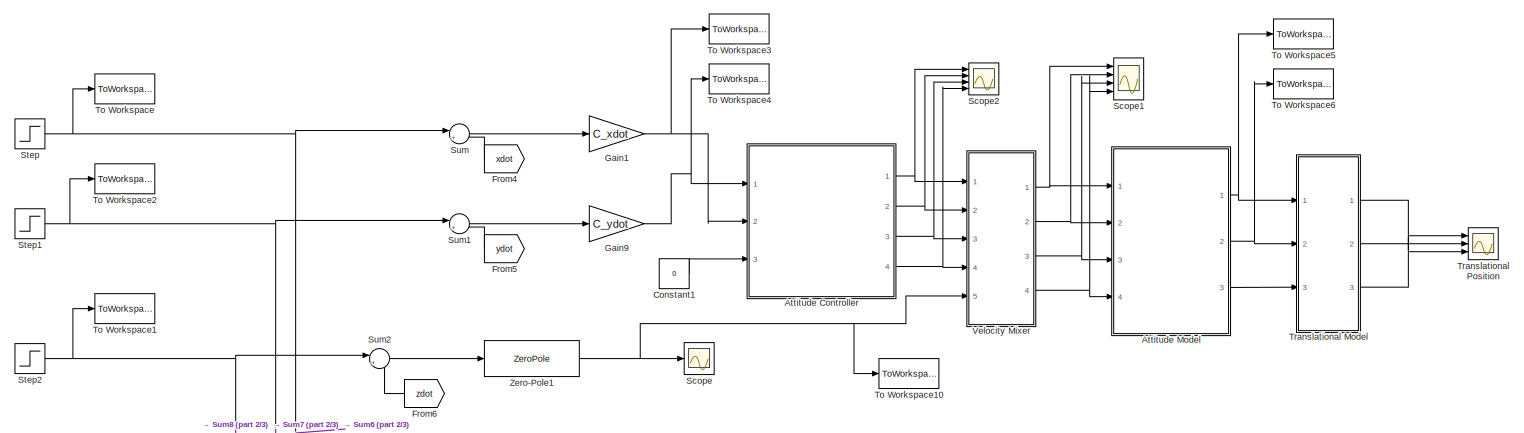
[diagram: root canvas - part 1/3, full width, top band]
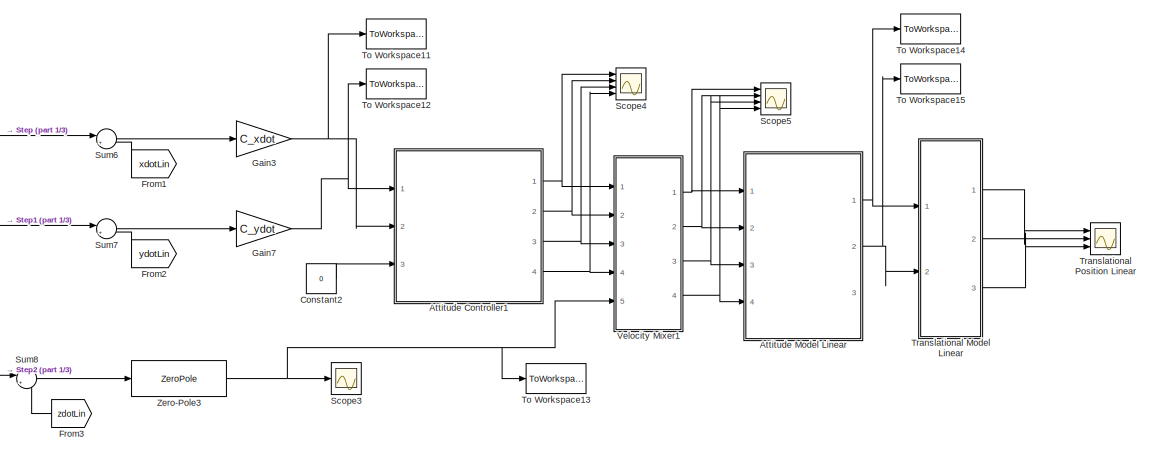
[diagram: root canvas - part 2/3, full width, middle band]
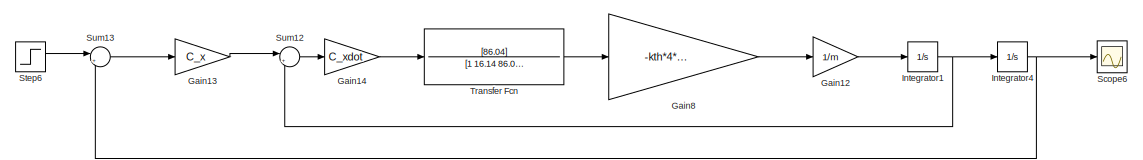
[diagram: root canvas - part 3/3, full width, bottom band]
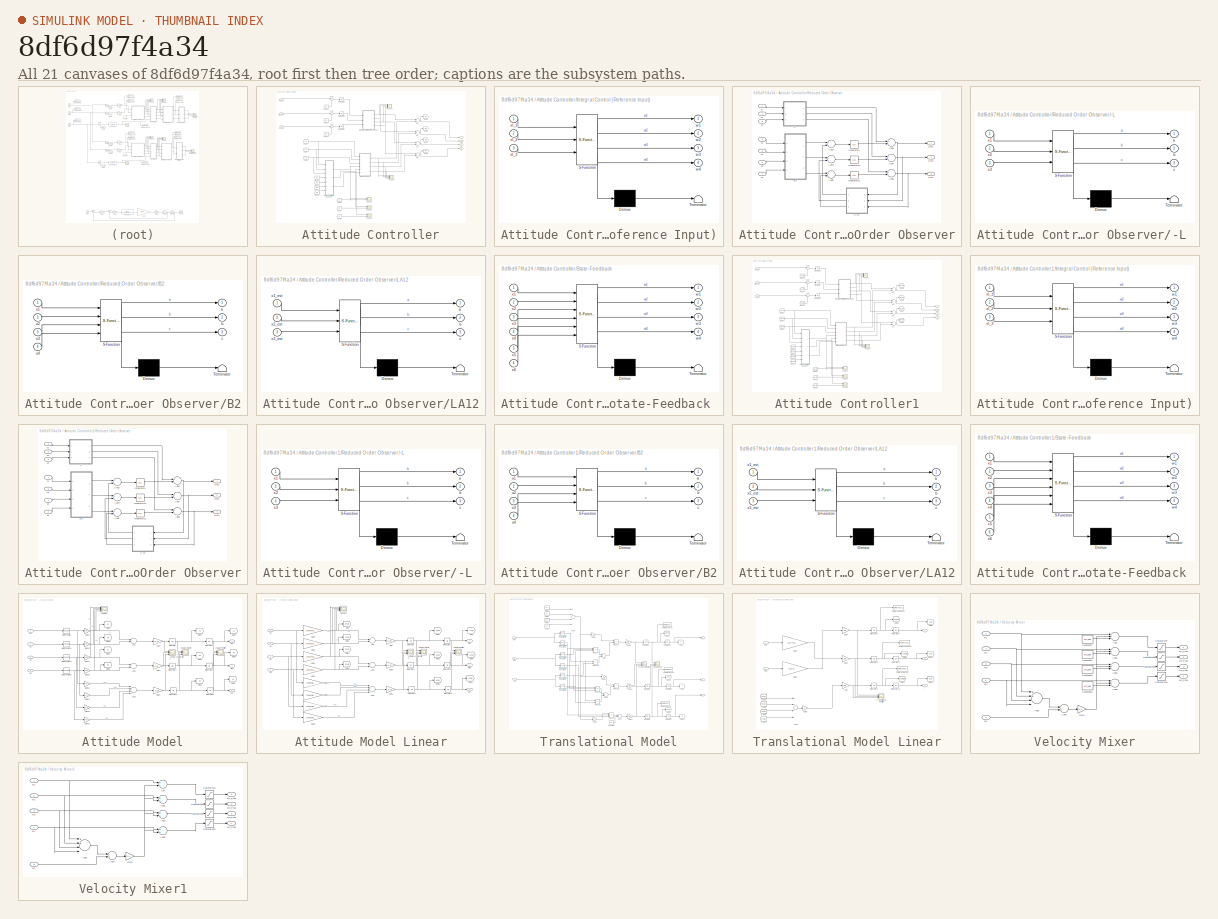
[diagram: thumbnail index - all 21 canvases of the model, root first then tree order]
MODEL slx_8df6d97f4a34
KIND model
CONFIG AbsTol = auto
CONFIG FixedStep = auto
CONFIG MaxStep = auto
CONFIG MinStep = auto
CONFIG RelTol = 1e-3
CONFIG SampleTimeConstraint = Unconstrained
CONFIG Solver = VariableStepAuto
CONFIG SolverMode = Auto
CONFIG SolverName = VariableStepAuto
CONFIG StartTime = 0.0
CONFIG StopTime = t
BLOCK [SubSystem] Attitude Controller
  Ports = [3, 4]
  RequestExecContextInheritance = off
  Variant = off
BLOCK [From] Attitude Controller/From10
  GotoTag = w2
BLOCK [From] Attitude Controller/From11
  GotoTag = w1
BLOCK [From] Attitude Controller/From12
  GotoTag = w3
BLOCK [From] Attitude Controller/From13
  GotoTag = x1
  TagVisibility = global
BLOCK [From] Attitude Controller/From14
  GotoTag = x2
  TagVisibility = global
BLOCK [From] Attitude Controller/From15
  GotoTag = x3
  TagVisibility = global
BLOCK [From] Attitude Controller/From16
  GotoTag = w4
BLOCK [From] Attitude Controller/From4
  GotoTag = x1
  TagVisibility = global
BLOCK [From] Attitude Controller/From5
  GotoTag = x4
  TagVisibility = global
BLOCK [From] Attitude Controller/From6
  GotoTag = x5
  TagVisibility = global
BLOCK [From] Attitude Controller/From7
  GotoTag = x2
  TagVisibility = global
BLOCK [From] Attitude Controller/From8
  GotoTag = x6
  TagVisibility = global
BLOCK [From] Attitude Controller/From9
  GotoTag = x3
  TagVisibility = global
BLOCK [Goto] Attitude Controller/Goto4
  GotoTag = w4
BLOCK [Goto] Attitude Controller/Goto5
  GotoTag = w2
BLOCK [Goto] Attitude Controller/Goto6
  GotoTag = w1
BLOCK [Goto] Attitude Controller/Goto7
  GotoTag = w3
BLOCK [SubSystem] Attitude Controller/Integral Control (Reference Input)
  ErrorFcn = Stateflow.Translate.translate
  PermitHierarchicalResolution = ExplicitOnly
  Ports = [3, 4]
  RequestExecContextInheritance = off
  SFBlockType = MATLAB Function
  TreatAsAtomicUnit = on
  Variant = off
BLOCK [Demux] Attitude Controller/Integral Control (Reference Input)/ Demux 
  Outputs = 1
  Ports = [1, 1]
BLOCK [S-Function] Attitude Controller/Integral Control (Reference Input)/ SFunction 
  EnableBusSupport = on
  FunctionName = sf_sfun
  Parameters = FI
  PortCounts = [3 5]
  Ports = [3, 5]
  SFunctionDeploymentMode = off
  Tag = Stateflow S-Function VelocityControllerSim 2
BLOCK [Terminator] Attitude Controller/Integral Control (Reference Input)/ Terminator 
BLOCK [Outport] Attitude Controller/Integral Control (Reference Input)/w1
  IconDisplay = Port number
BLOCK [Outport] Attitude Controller/Integral Control (Reference Input)/w2
  IconDisplay = Port number
  Port = 2
BLOCK [Outport] Attitude Controller/Integral Control (Reference Input)/w3
  IconDisplay = Port number
  Port = 3
BLOCK [Outport] Attitude Controller/Integral Control (Reference Input)/w4
  IconDisplay = Port number
  Port = 4
BLOCK [Inport] Attitude Controller/Integral Control (Reference Input)/xI_1
  IconDisplay = Port number
BLOCK [Inport] Attitude Controller/Integral Control (Reference Input)/xI_2
  IconDisplay = Port number
  Port = 2
BLOCK [Inport] Attitude Controller/Integral Control (Reference Input)/xI_3
  IconDisplay = Port number
  Port = 3
BLOCK [Integrator] Attitude Controller/Integrator12
  Ports = [1, 1]
BLOCK [Integrator] Attitude Controller/Integrator13
  Ports = [1, 1]
BLOCK [Integrator] Attitude Controller/Integrator14
  Ports = [1, 1]
BLOCK [Inport] Attitude Controller/Pitch_ref
  IconDisplay = Port number
  Port = 2
BLOCK [SubSystem] Attitude Controller/Reduced Order Observer
  Ports = [7, 3]
  RequestExecContextInheritance = off
  Variant = off
BLOCK [SubSystem] Attitude Controller/Reduced Order Observer/-L 
  ErrorFcn = Stateflow.Translate.translate
  PermitHierarchicalResolution = ExplicitOnly
  Ports = [3, 3]
  RequestExecContextInheritance = off
  SFBlockType = MATLAB Function
  TreatAsAtomicUnit = on
  Variant = off
BLOCK [Demux] Attitude Controller/Reduced Order Observer/-L / Demux 
  Outputs = 1
  Ports = [1, 1]
BLOCK [S-Function] Attitude Controller/Reduced Order Observer/-L / SFunction 
  EnableBusSupport = on
  FunctionName = sf_sfun
  Parameters = Lobs
  PortCounts = [3 4]
  Ports = [3, 4]
  SFunctionDeploymentMode = off
  Tag = Stateflow S-Function VelocityControllerSim 3
BLOCK [Terminator] Attitude Controller/Reduced Order Observer/-L / Terminator 
BLOCK [Outport] Attitude Controller/Reduced Order Observer/-L /a
  IconDisplay = Port number
BLOCK [Outport] Attitude Controller/Reduced Order Observer/-L /b
  IconDisplay = Port number
  Port = 2
BLOCK [Outport] Attitude Controller/Reduced Order Observer/-L /c
  IconDisplay = Port number
  Port = 3
BLOCK [Inport] Attitude Controller/Reduced Order Observer/-L /x1
  IconDisplay = Port number
BLOCK [Inport] Attitude Controller/Reduced Order Observer/-L /x2
  IconDisplay = Port number
  Port = 2
BLOCK [Inport] Attitude Controller/Reduced Order Observer/-L /x3
  IconDisplay = Port number
  Port = 3
BLOCK [Sum] Attitude Controller/Reduced Order Observer/Add3
  InputSameDT = off
  Inputs = 2
  OutDataTypeStr = Inherit: Inherit via internal rule
  Ports = [2, 1]
  SaturateOnIntegerOverflow = off
BLOCK [Sum] Attitude Controller/Reduced Order Observer/Add4
  InputSameDT = off
  Inputs = 2
  OutDataTypeStr = Inherit: Inherit via internal rule
  Ports = [2, 1]
  SaturateOnIntegerOverflow = off
BLOCK [Sum] Attitude Controller/Reduced Order Observer/Add5
  InputSameDT = off
  Inputs = 2
  OutDataTypeStr = Inherit: Inherit via internal rule
  Ports = [2, 1]
  SaturateOnIntegerOverflow = off
BLOCK [Sum] Attitude Controller/Reduced Order Observer/Add6
  InputSameDT = off
  Inputs = 2
  OutDataTypeStr = Inherit: Inherit via internal rule
  Ports = [2, 1]
  SaturateOnIntegerOverflow = off
BLOCK [Sum] Attitude Controller/Reduced Order Observer/Add7
  InputSameDT = off
  Inputs = 2
  OutDataTypeStr = Inherit: Inherit via internal rule
  Ports = [2, 1]
  SaturateOnIntegerOverflow = off
BLOCK [Sum] Attitude Controller/Reduced Order Observer/Add8
  InputSameDT = off
  Inputs = 2
  OutDataTypeStr = Inherit: Inherit via internal rule
  Ports = [2, 1]
  SaturateOnIntegerOverflow = off
BLOCK [SubSystem] Attitude Controller/Reduced Order Observer/B2
  ErrorFcn = Stateflow.Translate.translate
  PermitHierarchicalResolution = ExplicitOnly
  Ports = [4, 3]
  RequestExecContextInheritance = off
  SFBlockType = MATLAB Function
  TreatAsAtomicUnit = on
  Variant = off
BLOCK [Demux] Attitude Controller/Reduced Order Observer/B2/ Demux 
  Outputs = 1
  Ports = [1, 1]
BLOCK [S-Function] Attitude Controller/Reduced Order Observer/B2/ SFunction 
  EnableBusSupport = on
  FunctionName = sf_sfun
  Parameters = B2
  PortCounts = [4 4]
  Ports = [4, 4]
  SFunctionDeploymentMode = off
  Tag = Stateflow S-Function VelocityControllerSim 4
BLOCK [Terminator] Attitude Controller/Reduced Order Observer/B2/ Terminator 
BLOCK [Outport] Attitude Controller/Reduced Order Observer/B2/a
  IconDisplay = Port number
BLOCK [Outport] Attitude Controller/Reduced Order Observer/B2/b
  IconDisplay = Port number
  Port = 2
BLOCK [Outport] Attitude Controller/Reduced Order Observer/B2/c
  IconDisplay = Port number
  Port = 3
BLOCK [Inport] Attitude Controller/Reduced Order Observer/B2/u1
  IconDisplay = Port number
BLOCK [Inport] Attitude Controller/Reduced Order Observer/B2/u2
  IconDisplay = Port number
  Port = 2
BLOCK [Inport] Attitude Controller/Reduced Order Observer/B2/u3
  IconDisplay = Port number
  Port = 3
BLOCK [Inport] Attitude Controller/Reduced Order Observer/B2/u4
  IconDisplay = Port number
  Port = 4
BLOCK [Integrator] Attitude Controller/Reduced Order Observer/Integrator10
  Ports = [1, 1]
BLOCK [Integrator] Attitude Controller/Reduced Order Observer/Integrator11
  Ports = [1, 1]
BLOCK [Integrator] Attitude Controller/Reduced Order Observer/Integrator9
  Ports = [1, 1]
BLOCK [SubSystem] Attitude Controller/Reduced Order Observer/LA12
  ErrorFcn = Stateflow.Translate.translate
  PermitHierarchicalResolution = ExplicitOnly
  Ports = [3, 3]
  RequestExecContextInheritance = off
  SFBlockType = MATLAB Function
  TreatAsAtomicUnit = on
  Variant = off
BLOCK [Demux] Attitude Controller/Reduced Order Observer/LA12/ Demux 
  Outputs = 1
  Ports = [1, 1]
BLOCK [S-Function] Attitude Controller/Reduced Order Observer/LA12/ SFunction 
  EnableBusSupport = on
  FunctionName = sf_sfun
  Parameters = A12,Lobs
  PortCounts = [3 4]
  Ports = [3, 4]
  SFunctionDeploymentMode = off
  Tag = Stateflow S-Function VelocityControllerSim 5
BLOCK [Terminator] Attitude Controller/Reduced Order Observer/LA12/ Terminator 
BLOCK [Outport] Attitude Controller/Reduced Order Observer/LA12/a
  IconDisplay = Port number
BLOCK [Outport] Attitude Controller/Reduced Order Observer/LA12/b
  IconDisplay = Port number
  Port = 2
BLOCK [Outport] Attitude Controller/Reduced Order Observer/LA12/c
  IconDisplay = Port number
  Port = 3
BLOCK [Inport] Attitude Controller/Reduced Order Observer/LA12/x1_est
  IconDisplay = Port number
BLOCK [Inport] Attitude Controller/Reduced Order Observer/LA12/x2_est
  IconDisplay = Port number
  Port = 2
BLOCK [Inport] Attitude Controller/Reduced Order Observer/LA12/x3_est
  IconDisplay = Port number
  Port = 3
BLOCK [Outport] Attitude Controller/Reduced Order Observer/Out1
  IconDisplay = Port number
BLOCK [Outport] Attitude Controller/Reduced Order Observer/Out2
  IconDisplay = Port number
  Port = 2
BLOCK [Outport] Attitude Controller/Reduced Order Observer/Out3
  IconDisplay = Port number
  Port = 3
BLOCK [Inport] Attitude Controller/Reduced Order Observer/u1
  IconDisplay = Port number
  Port = 4
BLOCK [Inport] Attitude Controller/Reduced Order Observer/u2
  IconDisplay = Port number
  Port = 5
BLOCK [Inport] Attitude Controller/Reduced Order Observer/u3
  IconDisplay = Port number
  Port = 6
BLOCK [Inport] Attitude Controller/Reduced Order Observer/u4
  IconDisplay = Port number
  Port = 7
BLOCK [Inport] Attitude Controller/Reduced Order Observer/x1
  IconDisplay = Port number
BLOCK [Inport] Attitude Controller/Reduced Order Observer/x2
  IconDisplay = Port number
  Port = 2
BLOCK [Inport] Attitude Controller/Reduced Order Observer/x3
  IconDisplay = Port number
  Port = 3
BLOCK [Inport] Attitude Controller/Roll_ref
  IconDisplay = Port number
BLOCK [Scope] Attitude Controller/Scope4
  NumInputPorts = 2
  Ports = [2]
  ScopeSpecificationString = Simulink.scopes.TimeScopeBlockCfg('CurrentConfiguration', extmgr.ConfigurationSet(extmgr.Configuration('Core','General UI',true),extmgr.Configuration('Core','Source UI',true),extmgr.Configuration('Sources','WiredSimulink',true,'DataLoggingVariableName','ScopeData7'),extmgr.Configuration('Visuals','Time Domain',true,'SerializedDisplays',{struct('MinYLimReal','-0.08424','MaxYLimReal','0.75814','YLab...<+1421ch>
BLOCK [Scope] Attitude Controller/Scope5
  NumInputPorts = 4
  Ports = [4]
  ScopeSpecificationString = Simulink.scopes.TimeScopeBlockCfg('CurrentConfiguration', extmgr.ConfigurationSet(extmgr.Configuration('Core','General UI',true),extmgr.Configuration('Core','Source UI',true),extmgr.Configuration('Sources','WiredSimulink',true,'DataLoggingVariableName','ScopeData8'),extmgr.Configuration('Visuals','Time Domain',true,'SerializedDisplays',{struct('MinYLimReal','-1.00000','MaxYLimReal','1.00000','YLab...<+1572ch>
BLOCK [Scope] Attitude Controller/Scope6
  NumInputPorts = 4
  Ports = [4]
  ScopeSpecificationString = Simulink.scopes.TimeScopeBlockCfg('CurrentConfiguration', extmgr.ConfigurationSet(extmgr.Configuration('Core','General UI',true),extmgr.Configuration('Core','Source UI',true),extmgr.Configuration('Sources','WiredSimulink',true,'DataLoggingVariableName','ScopeData9','DataLoggingLimitDataPoints',true,'DataLoggingSaveFormat','Array','DataLoggingDecimation','1','DataLoggingDecimateData',true),extmgr.C...<+165ch>
BLOCK [Scope] Attitude Controller/Scope7
  NumInputPorts = 2
  Ports = [2]
  ScopeSpecificationString = Simulink.scopes.TimeScopeBlockCfg('CurrentConfiguration', extmgr.ConfigurationSet(extmgr.Configuration('Core','General UI',true),extmgr.Configuration('Core','Source UI',true),extmgr.Configuration('Sources','WiredSimulink',true,'DataLoggingVariableName','ScopeData10','DataLoggingLimitDataPoints',true,'DataLoggingSaveFormat','Array','DataLoggingDecimation','1','DataLoggingDecimateData',true),extmgr....<+166ch>
BLOCK [Scope] Attitude Controller/Scope8
  NumInputPorts = 2
  Ports = [2]
  ScopeSpecificationString = Simulink.scopes.TimeScopeBlockCfg('CurrentConfiguration', extmgr.ConfigurationSet(extmgr.Configuration('Core','General UI',true),extmgr.Configuration('Core','Source UI',true),extmgr.Configuration('Sources','WiredSimulink',true,'DataLoggingVariableName','ScopeData11','DataLoggingLimitDataPoints',true,'DataLoggingSaveFormat','Array','DataLoggingDecimation','1','DataLoggingDecimateData',true),extmgr....<+166ch>
BLOCK [SubSystem] Attitude Controller/State-Feedback 
  ErrorFcn = Stateflow.Translate.translate
  PermitHierarchicalResolution = ExplicitOnly
  Ports = [6, 4]
  RequestExecContextInheritance = off
  SFBlockType = MATLAB Function
  TreatAsAtomicUnit = on
  Variant = off
BLOCK [Demux] Attitude Controller/State-Feedback / Demux 
  Outputs = 1
  Ports = [1, 1]
BLOCK [S-Function] Attitude Controller/State-Feedback / SFunction 
  EnableBusSupport = on
  FunctionName = sf_sfun
  Parameters = F
  PortCounts = [6 5]
  Ports = [6, 5]
  SFunctionDeploymentMode = off
  Tag = Stateflow S-Function VelocityControllerSim 1
BLOCK [Terminator] Attitude Controller/State-Feedback / Terminator 
BLOCK [Outport] Attitude Controller/State-Feedback /w1
  IconDisplay = Port number
BLOCK [Outport] Attitude Controller/State-Feedback /w2
  IconDisplay = Port number
  Port = 2
BLOCK [Outport] Attitude Controller/State-Feedback /w3
  IconDisplay = Port number
  Port = 3
BLOCK [Outport] Attitude Controller/State-Feedback /w4
  IconDisplay = Port number
  Port = 4
BLOCK [Inport] Attitude Controller/State-Feedback /x1
  IconDisplay = Port number
BLOCK [Inport] Attitude Controller/State-Feedback /x2
  IconDisplay = Port number
  Port = 2
BLOCK [Inport] Attitude Controller/State-Feedback /x3
  IconDisplay = Port number
  Port = 3
BLOCK [Inport] Attitude Controller/State-Feedback /x4
  IconDisplay = Port number
  Port = 4
BLOCK [Inport] Attitude Controller/State-Feedback /x5
  IconDisplay = Port number
  Port = 5
BLOCK [Inport] Attitude Controller/State-Feedback /x6
  IconDisplay = Port number
  Port = 6
BLOCK [Sum] Attitude Controller/Sum
  IconShape = round
  InputSameDT = off
  Inputs = |-+
  OutDataTypeStr = Inherit: Inherit via internal rule
  Ports = [2, 1]
  SaturateOnIntegerOverflow = off
BLOCK [Sum] Attitude Controller/Sum1
  IconShape = round
  InputSameDT = off
  Inputs = |-+
  OutDataTypeStr = Inherit: Inherit via internal rule
  Ports = [2, 1]
  SaturateOnIntegerOverflow = off
BLOCK [Sum] Attitude Controller/Sum2
  IconShape = round
  InputSameDT = off
  Inputs = |-+
  OutDataTypeStr = Inherit: Inherit via internal rule
  Ports = [2, 1]
  SaturateOnIntegerOverflow = off
BLOCK [Inport] Attitude Controller/Yaw_ref
  IconDisplay = Port number
  Port = 3
BLOCK [Outport] Attitude Controller/w1
  IconDisplay = Port number
BLOCK [Sum] Attitude Controller/w1_
  InputSameDT = off
  OutDataTypeStr = Inherit: Inherit via internal rule
  Ports = [2, 1]
  SaturateOnIntegerOverflow = off
BLOCK [Outport] Attitude Controller/w2
  IconDisplay = Port number
  Port = 2
BLOCK [Sum] Attitude Controller/w2_
  InputSameDT = off
  OutDataTypeStr = Inherit: Inherit via internal rule
  Ports = [2, 1]
  SaturateOnIntegerOverflow = off
BLOCK [Outport] Attitude Controller/w3
  IconDisplay = Port number
  Port = 3
BLOCK [Sum] Attitude Controller/w3_
  InputSameDT = off
  OutDataTypeStr = Inherit: Inherit via internal rule
  Ports = [2, 1]
  SaturateOnIntegerOverflow = off
BLOCK [Outport] Attitude Controller/w4
  IconDisplay = Port number
  Port = 4
BLOCK [Sum] Attitude Controller/w4_
  InputSameDT = off
  OutDataTypeStr = Inherit: Inherit via internal rule
  Ports = [2, 1]
  SaturateOnIntegerOverflow = off
BLOCK [SubSystem] Attitude Controller1
  Ports = [3, 4]
  RequestExecContextInheritance = off
  Variant = off
BLOCK [From] Attitude Controller1/From10
  GotoTag = w2Lin
BLOCK [From] Attitude Controller1/From11
  GotoTag = w1Lin
BLOCK [From] Attitude Controller1/From12
  GotoTag = w3Lin
BLOCK [From] Attitude Controller1/From13
  GotoTag = x1Lin
  TagVisibility = global
BLOCK [From] Attitude Controller1/From14
  GotoTag = x2Lin
  TagVisibility = global
BLOCK [From] Attitude Controller1/From15
  GotoTag = x3Lin
  TagVisibility = global
BLOCK [From] Attitude Controller1/From16
  GotoTag = w4Lin
BLOCK [From] Attitude Controller1/From4
  GotoTag = x1Lin
  TagVisibility = global
BLOCK [From] Attitude Controller1/From5
  GotoTag = x4Lin
  TagVisibility = global
BLOCK [From] Attitude Controller1/From6
  GotoTag = x5Lin
  TagVisibility = global
BLOCK [From] Attitude Controller1/From7
  GotoTag = x2Lin
  TagVisibility = global
BLOCK [From] Attitude Controller1/From8
  GotoTag = x6Lin
  TagVisibility = global
BLOCK [From] Attitude Controller1/From9
  GotoTag = x3Lin
  TagVisibility = global
BLOCK [Goto] Attitude Controller1/Goto4
  GotoTag = w4Lin
BLOCK [Goto] Attitude Controller1/Goto5
  GotoTag = w2Lin
BLOCK [Goto] Attitude Controller1/Goto6
  GotoTag = w1Lin
BLOCK [Goto] Attitude Controller1/Goto7
  GotoTag = w3Lin
BLOCK [SubSystem] Attitude Controller1/Integral Control (Reference Input)
  ErrorFcn = Stateflow.Translate.translate
  PermitHierarchicalResolution = ExplicitOnly
  Ports = [3, 4]
  RequestExecContextInheritance = off
  SFBlockType = MATLAB Function
  TreatAsAtomicUnit = on
  Variant = off
BLOCK [Demux] Attitude Controller1/Integral Control (Reference Input)/ Demux 
  Outputs = 1
  Ports = [1, 1]
BLOCK [S-Function] Attitude Controller1/Integral Control (Reference Input)/ SFunction 
  EnableBusSupport = on
  FunctionName = sf_sfun
  Parameters = FI
  PortCounts = [3 5]
  Ports = [3, 5]
  SFunctionDeploymentMode = off
  Tag = Stateflow S-Function VelocityControllerSim 6
BLOCK [Terminator] Attitude Controller1/Integral Control (Reference Input)/ Terminator 
BLOCK [Outport] Attitude Controller1/Integral Control (Reference Input)/w1
  IconDisplay = Port number
BLOCK [Outport] Attitude Controller1/Integral Control (Reference Input)/w2
  IconDisplay = Port number
  Port = 2
BLOCK [Outport] Attitude Controller1/Integral Control (Reference Input)/w3
  IconDisplay = Port number
  Port = 3
BLOCK [Outport] Attitude Controller1/Integral Control (Reference Input)/w4
  IconDisplay = Port number
  Port = 4
BLOCK [Inport] Attitude Controller1/Integral Control (Reference Input)/xI_1
  IconDisplay = Port number
BLOCK [Inport] Attitude Controller1/Integral Control (Reference Input)/xI_2
  IconDisplay = Port number
  Port = 2
BLOCK [Inport] Attitude Controller1/Integral Control (Reference Input)/xI_3
  IconDisplay = Port number
  Port = 3
BLOCK [Integrator] Attitude Controller1/Integrator12
  Ports = [1, 1]
BLOCK [Integrator] Attitude Controller1/Integrator13
  Ports = [1, 1]
BLOCK [Integrator] Attitude Controller1/Integrator14
  Ports = [1, 1]
BLOCK [Inport] Attitude Controller1/Pitch_ref
  IconDisplay = Port number
  Port = 2
BLOCK [SubSystem] Attitude Controller1/Reduced Order Observer
  Ports = [7, 3]
  RequestExecContextInheritance = off
  Variant = off
BLOCK [SubSystem] Attitude Controller1/Reduced Order Observer/-L 
  ErrorFcn = Stateflow.Translate.translate
  PermitHierarchicalResolution = ExplicitOnly
  Ports = [3, 3]
  RequestExecContextInheritance = off
  SFBlockType = MATLAB Function
  TreatAsAtomicUnit = on
  Variant = off
BLOCK [Demux] Attitude Controller1/Reduced Order Observer/-L / Demux 
  Outputs = 1
  Ports = [1, 1]
BLOCK [S-Function] Attitude Controller1/Reduced Order Observer/-L / SFunction 
  EnableBusSupport = on
  FunctionName = sf_sfun
  Parameters = Lobs
  PortCounts = [3 4]
  Ports = [3, 4]
  SFunctionDeploymentMode = off
  Tag = Stateflow S-Function VelocityControllerSim 7
BLOCK [Terminator] Attitude Controller1/Reduced Order Observer/-L / Terminator 
BLOCK [Outport] Attitude Controller1/Reduced Order Observer/-L /a
  IconDisplay = Port number
BLOCK [Outport] Attitude Controller1/Reduced Order Observer/-L /b
  IconDisplay = Port number
  Port = 2
BLOCK [Outport] Attitude Controller1/Reduced Order Observer/-L /c
  IconDisplay = Port number
  Port = 3
BLOCK [Inport] Attitude Controller1/Reduced Order Observer/-L /x1
  IconDisplay = Port number
BLOCK [Inport] Attitude Controller1/Reduced Order Observer/-L /x2
  IconDisplay = Port number
  Port = 2
BLOCK [Inport] Attitude Controller1/Reduced Order Observer/-L /x3
  IconDisplay = Port number
  Port = 3
BLOCK [Sum] Attitude Controller1/Reduced Order Observer/Add3
  InputSameDT = off
  Inputs = 2
  OutDataTypeStr = Inherit: Inherit via internal rule
  Ports = [2, 1]
  SaturateOnIntegerOverflow = off
BLOCK [Sum] Attitude Controller1/Reduced Order Observer/Add4
  InputSameDT = off
  Inputs = 2
  OutDataTypeStr = Inherit: Inherit via internal rule
  Ports = [2, 1]
  SaturateOnIntegerOverflow = off
BLOCK [Sum] Attitude Controller1/Reduced Order Observer/Add5
  InputSameDT = off
  Inputs = 2
  OutDataTypeStr = Inherit: Inherit via internal rule
  Ports = [2, 1]
  SaturateOnIntegerOverflow = off
BLOCK [Sum] Attitude Controller1/Reduced Order Observer/Add6
  InputSameDT = off
  Inputs = 2
  OutDataTypeStr = Inherit: Inherit via internal rule
  Ports = [2, 1]
  SaturateOnIntegerOverflow = off
BLOCK [Sum] Attitude Controller1/Reduced Order Observer/Add7
  InputSameDT = off
  Inputs = 2
  OutDataTypeStr = Inherit: Inherit via internal rule
  Ports = [2, 1]
  SaturateOnIntegerOverflow = off
BLOCK [Sum] Attitude Controller1/Reduced Order Observer/Add8
  InputSameDT = off
  Inputs = 2
  OutDataTypeStr = Inherit: Inherit via internal rule
  Ports = [2, 1]
  SaturateOnIntegerOverflow = off
BLOCK [SubSystem] Attitude Controller1/Reduced Order Observer/B2
  ErrorFcn = Stateflow.Translate.translate
  PermitHierarchicalResolution = ExplicitOnly
  Ports = [4, 3]
  RequestExecContextInheritance = off
  SFBlockType = MATLAB Function
  TreatAsAtomicUnit = on
  Variant = off
BLOCK [Demux] Attitude Controller1/Reduced Order Observer/B2/ Demux 
  Outputs = 1
  Ports = [1, 1]
BLOCK [S-Function] Attitude Controller1/Reduced Order Observer/B2/ SFunction 
  EnableBusSupport = on
  FunctionName = sf_sfun
  Parameters = B2
  PortCounts = [4 4]
  Ports = [4, 4]
  SFunctionDeploymentMode = off
  Tag = Stateflow S-Function VelocityControllerSim 8
BLOCK [Terminator] Attitude Controller1/Reduced Order Observer/B2/ Terminator 
BLOCK [Outport] Attitude Controller1/Reduced Order Observer/B2/a
  IconDisplay = Port number
BLOCK [Outport] Attitude Controller1/Reduced Order Observer/B2/b
  IconDisplay = Port number
  Port = 2
BLOCK [Outport] Attitude Controller1/Reduced Order Observer/B2/c
  IconDisplay = Port number
  Port = 3
BLOCK [Inport] Attitude Controller1/Reduced Order Observer/B2/u1
  IconDisplay = Port number
BLOCK [Inport] Attitude Controller1/Reduced Order Observer/B2/u2
  IconDisplay = Port number
  Port = 2
BLOCK [Inport] Attitude Controller1/Reduced Order Observer/B2/u3
  IconDisplay = Port number
  Port = 3
BLOCK [Inport] Attitude Controller1/Reduced Order Observer/B2/u4
  IconDisplay = Port number
  Port = 4
BLOCK [Integrator] Attitude Controller1/Reduced Order Observer/Integrator10
  Ports = [1, 1]
BLOCK [Integrator] Attitude Controller1/Reduced Order Observer/Integrator11
  Ports = [1, 1]
BLOCK [Integrator] Attitude Controller1/Reduced Order Observer/Integrator9
  Ports = [1, 1]
BLOCK [SubSystem] Attitude Controller1/Reduced Order Observer/LA12
  ErrorFcn = Stateflow.Translate.translate
  PermitHierarchicalResolution = ExplicitOnly
  Ports = [3, 3]
  RequestExecContextInheritance = off
  SFBlockType = MATLAB Function
  TreatAsAtomicUnit = on
  Variant = off
BLOCK [Demux] Attitude Controller1/Reduced Order Observer/LA12/ Demux 
  Outputs = 1
  Ports = [1, 1]
BLOCK [S-Function] Attitude Controller1/Reduced Order Observer/LA12/ SFunction 
  EnableBusSupport = on
  FunctionName = sf_sfun
  Parameters = A12,Lobs
  PortCounts = [3 4]
  Ports = [3, 4]
  SFunctionDeploymentMode = off
  Tag = Stateflow S-Function VelocityControllerSim 9
BLOCK [Terminator] Attitude Controller1/Reduced Order Observer/LA12/ Terminator 
BLOCK [Outport] Attitude Controller1/Reduced Order Observer/LA12/a
  IconDisplay = Port number
BLOCK [Outport] Attitude Controller1/Reduced Order Observer/LA12/b
  IconDisplay = Port number
  Port = 2
BLOCK [Outport] Attitude Controller1/Reduced Order Observer/LA12/c
  IconDisplay = Port number
  Port = 3
BLOCK [Inport] Attitude Controller1/Reduced Order Observer/LA12/x1_est
  IconDisplay = Port number
BLOCK [Inport] Attitude Controller1/Reduced Order Observer/LA12/x2_est
  IconDisplay = Port number
  Port = 2
BLOCK [Inport] Attitude Controller1/Reduced Order Observer/LA12/x3_est
  IconDisplay = Port number
  Port = 3
BLOCK [Outport] Attitude Controller1/Reduced Order Observer/Out1
  IconDisplay = Port number
BLOCK [Outport] Attitude Controller1/Reduced Order Observer/Out2
  IconDisplay = Port number
  Port = 2
BLOCK [Outport] Attitude Controller1/Reduced Order Observer/Out3
  IconDisplay = Port number
  Port = 3
BLOCK [Inport] Attitude Controller1/Reduced Order Observer/u1
  IconDisplay = Port number
  Port = 4
BLOCK [Inport] Attitude Controller1/Reduced Order Observer/u2
  IconDisplay = Port number
  Port = 5
BLOCK [Inport] Attitude Controller1/Reduced Order Observer/u3
  IconDisplay = Port number
  Port = 6
BLOCK [Inport] Attitude Controller1/Reduced Order Observer/u4
  IconDisplay = Port number
  Port = 7
BLOCK [Inport] Attitude Controller1/Reduced Order Observer/x1
  IconDisplay = Port number
BLOCK [Inport] Attitude Controller1/Reduced Order Observer/x2
  IconDisplay = Port number
  Port = 2
BLOCK [Inport] Attitude Controller1/Reduced Order Observer/x3
  IconDisplay = Port number
  Port = 3
BLOCK [Inport] Attitude Controller1/Roll_ref
  IconDisplay = Port number
BLOCK [Scope] Attitude Controller1/Scope4
  NumInputPorts = 2
  Ports = [2]
  ScopeSpecificationString = Simulink.scopes.TimeScopeBlockCfg('CurrentConfiguration', extmgr.ConfigurationSet(extmgr.Configuration('Core','General UI',true),extmgr.Configuration('Core','Source UI',true),extmgr.Configuration('Sources','WiredSimulink',true,'DataLoggingVariableName','ScopeData7'),extmgr.Configuration('Visuals','Time Domain',true,'SerializedDisplays',{struct('MinYLimReal','-0.08424','MaxYLimReal','0.75814','YLab...<+1421ch>
BLOCK [Scope] Attitude Controller1/Scope5
  NumInputPorts = 4
  Ports = [4]
  ScopeSpecificationString = Simulink.scopes.TimeScopeBlockCfg('CurrentConfiguration', extmgr.ConfigurationSet(extmgr.Configuration('Core','General UI',true),extmgr.Configuration('Core','Source UI',true),extmgr.Configuration('Sources','WiredSimulink',true,'DataLoggingVariableName','ScopeData8'),extmgr.Configuration('Visuals','Time Domain',true,'SerializedDisplays',{struct('MinYLimReal','-1.00000','MaxYLimReal','1.00000','YLab...<+1572ch>
BLOCK [Scope] Attitude Controller1/Scope6
  NumInputPorts = 4
  Ports = [4]
  ScopeSpecificationString = Simulink.scopes.TimeScopeBlockCfg('CurrentConfiguration', extmgr.ConfigurationSet(extmgr.Configuration('Core','General UI',true),extmgr.Configuration('Core','Source UI',true),extmgr.Configuration('Sources','WiredSimulink',true,'DataLoggingVariableName','ScopeData9','DataLoggingLimitDataPoints',true,'DataLoggingSaveFormat','Array','DataLoggingDecimation','1','DataLoggingDecimateData',true),extmgr.C...<+165ch>
BLOCK [Scope] Attitude Controller1/Scope7
  NumInputPorts = 2
  Ports = [2]
  ScopeSpecificationString = Simulink.scopes.TimeScopeBlockCfg('CurrentConfiguration', extmgr.ConfigurationSet(extmgr.Configuration('Core','General UI',true),extmgr.Configuration('Core','Source UI',true),extmgr.Configuration('Sources','WiredSimulink',true,'DataLoggingVariableName','ScopeData10','DataLoggingLimitDataPoints',true,'DataLoggingSaveFormat','Array','DataLoggingDecimation','1','DataLoggingDecimateData',true),extmgr....<+166ch>
BLOCK [Scope] Attitude Controller1/Scope8
  NumInputPorts = 2
  Ports = [2]
  ScopeSpecificationString = Simulink.scopes.TimeScopeBlockCfg('CurrentConfiguration', extmgr.ConfigurationSet(extmgr.Configuration('Core','General UI',true),extmgr.Configuration('Core','Source UI',true),extmgr.Configuration('Sources','WiredSimulink',true,'DataLoggingVariableName','ScopeData11','DataLoggingLimitDataPoints',true,'DataLoggingSaveFormat','Array','DataLoggingDecimation','1','DataLoggingDecimateData',true),extmgr....<+166ch>
BLOCK [SubSystem] Attitude Controller1/State-Feedback 
  ErrorFcn = Stateflow.Translate.translate
  PermitHierarchicalResolution = ExplicitOnly
  Ports = [6, 4]
  RequestExecContextInheritance = off
  SFBlockType = MATLAB Function
  TreatAsAtomicUnit = on
  Variant = off
BLOCK [Demux] Attitude Controller1/State-Feedback / Demux 
  Outputs = 1
  Ports = [1, 1]
BLOCK [S-Function] Attitude Controller1/State-Feedback / SFunction 
  EnableBusSupport = on
  FunctionName = sf_sfun
  Parameters = F
  PortCounts = [6 5]
  Ports = [6, 5]
  SFunctionDeploymentMode = off
  Tag = Stateflow S-Function VelocityControllerSim 10
BLOCK [Terminator] Attitude Controller1/State-Feedback / Terminator 
BLOCK [Outport] Attitude Controller1/State-Feedback /w1
  IconDisplay = Port number
BLOCK [Outport] Attitude Controller1/State-Feedback /w2
  IconDisplay = Port number
  Port = 2
BLOCK [Outport] Attitude Controller1/State-Feedback /w3
  IconDisplay = Port number
  Port = 3
BLOCK [Outport] Attitude Controller1/State-Feedback /w4
  IconDisplay = Port number
  Port = 4
BLOCK [Inport] Attitude Controller1/State-Feedback /x1
  IconDisplay = Port number
BLOCK [Inport] Attitude Controller1/State-Feedback /x2
  IconDisplay = Port number
  Port = 2
BLOCK [Inport] Attitude Controller1/State-Feedback /x3
  IconDisplay = Port number
  Port = 3
BLOCK [Inport] Attitude Controller1/State-Feedback /x4
  IconDisplay = Port number
  Port = 4
BLOCK [Inport] Attitude Controller1/State-Feedback /x5
  IconDisplay = Port number
  Port = 5
BLOCK [Inport] Attitude Controller1/State-Feedback /x6
  IconDisplay = Port number
  Port = 6
BLOCK [Sum] Attitude Controller1/Sum
  IconShape = round
  InputSameDT = off
  Inputs = |-+
  OutDataTypeStr = Inherit: Inherit via internal rule
  Ports = [2, 1]
  SaturateOnIntegerOverflow = off
BLOCK [Sum] Attitude Controller1/Sum1
  IconShape = round
  InputSameDT = off
  Inputs = |-+
  OutDataTypeStr = Inherit: Inherit via internal rule
  Ports = [2, 1]
  SaturateOnIntegerOverflow = off
BLOCK [Sum] Attitude Controller1/Sum2
  IconShape = round
  InputSameDT = off
  Inputs = |-+
  OutDataTypeStr = Inherit: Inherit via internal rule
  Ports = [2, 1]
  SaturateOnIntegerOverflow = off
BLOCK [Inport] Attitude Controller1/Yaw_ref
  IconDisplay = Port number
  Port = 3
BLOCK [Outport] Attitude Controller1/w1
  IconDisplay = Port number
BLOCK [Sum] Attitude Controller1/w1_
  InputSameDT = off
  OutDataTypeStr = Inherit: Inherit via internal rule
  Ports = [2, 1]
  SaturateOnIntegerOverflow = off
BLOCK [Outport] Attitude Controller1/w2
  IconDisplay = Port number
  Port = 2
BLOCK [Sum] Attitude Controller1/w2_
  InputSameDT = off
  OutDataTypeStr = Inherit: Inherit via internal rule
  Ports = [2, 1]
  SaturateOnIntegerOverflow = off
BLOCK [Outport] Attitude Controller1/w3
  IconDisplay = Port number
  Port = 3
BLOCK [Sum] Attitude Controller1/w3_
  InputSameDT = off
  OutDataTypeStr = Inherit: Inherit via internal rule
  Ports = [2, 1]
  SaturateOnIntegerOverflow = off
BLOCK [Outport] Attitude Controller1/w4
  IconDisplay = Port number
  Port = 4
BLOCK [Sum] Attitude Controller1/w4_
  InputSameDT = off
  OutDataTypeStr = Inherit: Inherit via internal rule
  Ports = [2, 1]
  SaturateOnIntegerOverflow = off
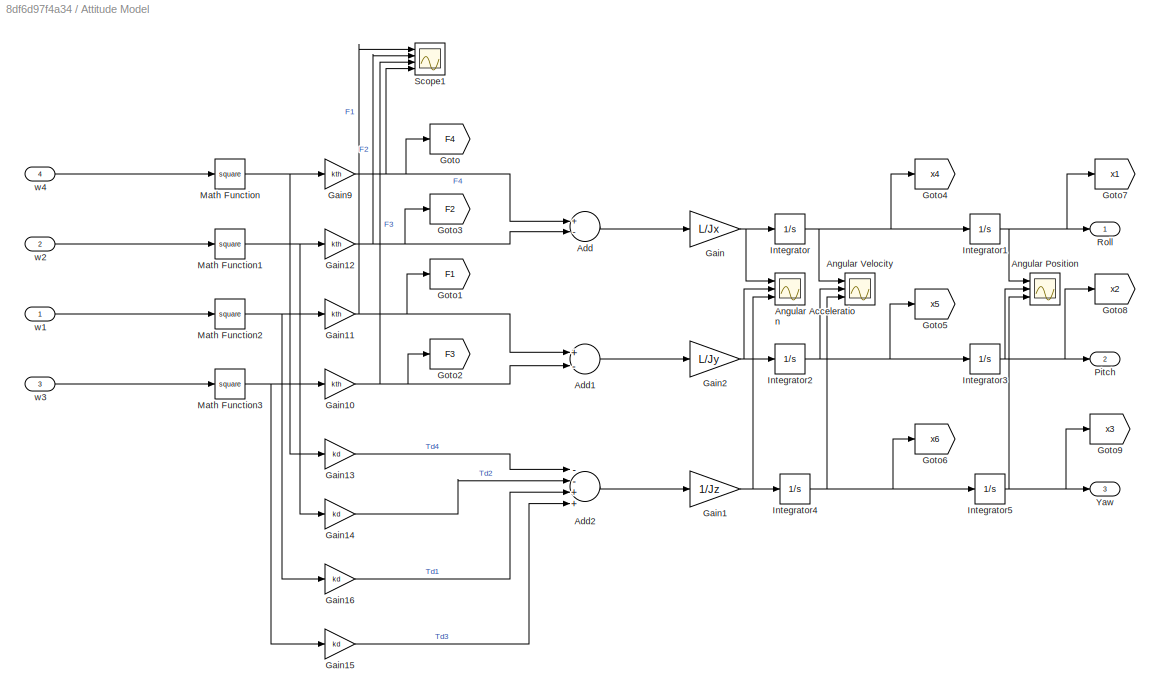
BLOCK [SubSystem] Attitude Model
  Ports = [4, 3]
  RequestExecContextInheritance = off
  Variant = off
BLOCK [SubSystem] Attitude Model Linear
  Ports = [4, 3]
  RequestExecContextInheritance = off
  Variant = off
BLOCK [Sum] Attitude Model Linear/Add
  InputSameDT = off
  Inputs = +-
  OutDataTypeStr = Inherit: Inherit via internal rule
  Ports = [2, 1]
  SaturateOnIntegerOverflow = off
BLOCK [Sum] Attitude Model Linear/Add1
  InputSameDT = off
  Inputs = +-
  OutDataTypeStr = Inherit: Inherit via internal rule
  Ports = [2, 1]
  SaturateOnIntegerOverflow = off
BLOCK [Sum] Attitude Model Linear/Add2
  InputSameDT = off
  Inputs = --++
  OutDataTypeStr = Inherit: Inherit via internal rule
  Ports = [4, 1]
  SaturateOnIntegerOverflow = off
BLOCK [Scope] Attitude Model Linear/Angular Acceleration
  NumInputPorts = 3
  Ports = [3]
  ScopeSpecificationString = Simulink.scopes.TimeScopeBlockCfg('CurrentConfiguration', extmgr.ConfigurationSet(extmgr.Configuration('Core','General UI',true),extmgr.Configuration('Core','Source UI',true),extmgr.Configuration('Sources','WiredSimulink',true,'DataLoggingVariableName','ScopeData3','DataLoggingLimitDataPoints',true,'DataLoggingSaveFormat','Array','DataLoggingDecimation','1','DataLoggingDecimateData',true),extmgr.C...<+1531ch>
BLOCK [Scope] Attitude Model Linear/Angular Position
  NumInputPorts = 3
  Ports = [3]
  ScopeSpecificationString = Simulink.scopes.TimeScopeBlockCfg('CurrentConfiguration', extmgr.ConfigurationSet(extmgr.Configuration('Core','General UI',true),extmgr.Configuration('Core','Source UI',true),extmgr.Configuration('Sources','WiredSimulink',true,'DataLoggingVariableName','ScopeData1'),extmgr.Configuration('Visuals','Time Domain',true,'SerializedDisplays',{struct('MinYLimReal','-0.01233','MaxYLimReal','0.01554','YLab...<+1442ch>
BLOCK [Scope] Attitude Model Linear/Angular Velocity
  NumInputPorts = 3
  Ports = [3]
  ScopeSpecificationString = Simulink.scopes.TimeScopeBlockCfg('CurrentConfiguration', extmgr.ConfigurationSet(extmgr.Configuration('Core','General UI',true),extmgr.Configuration('Core','Source UI',true),extmgr.Configuration('Sources','WiredSimulink',true,'DataLoggingVariableName','ScopeData2','DataLoggingLimitDataPoints',true,'DataLoggingSaveFormat','Array','DataLoggingDecimation','1','DataLoggingDecimateData',true),extmgr.C...<+1624ch>
BLOCK [Gain] Attitude Model Linear/Gain
  Gain = L/Jx
  OutDataTypeStr = Inherit: Inherit via internal rule
  ParamDataTypeStr = Inherit: Inherit via internal rule
  SaturateOnIntegerOverflow = off
BLOCK [Gain] Attitude Model Linear/Gain1
  Gain = 1/Jz
  OutDataTypeStr = Inherit: Inherit via internal rule
  ParamDataTypeStr = Inherit: Inherit via internal rule
  SaturateOnIntegerOverflow = off
BLOCK [Gain] Attitude Model Linear/Gain10
  Gain = 2*kd*w1_bar
  OutDataTypeStr = Inherit: Inherit via internal rule
  ParamDataTypeStr = Inherit: Inherit via internal rule
  SaturateOnIntegerOverflow = off
BLOCK [Gain] Attitude Model Linear/Gain2
  Gain = L/Jy
  OutDataTypeStr = Inherit: Inherit via internal rule
  ParamDataTypeStr = Inherit: Inherit via internal rule
  SaturateOnIntegerOverflow = off
BLOCK [Gain] Attitude Model Linear/Gain3
  Gain = 2*kth*w2_bar
  OutDataTypeStr = Inherit: Inherit via internal rule
  ParamDataTypeStr = Inherit: Inherit via internal rule
  SaturateOnIntegerOverflow = off
BLOCK [Gain] Attitude Model Linear/Gain4
  Gain = 2*kth*w1_bar
  OutDataTypeStr = Inherit: Inherit via internal rule
  ParamDataTypeStr = Inherit: Inherit via internal rule
  SaturateOnIntegerOverflow = off
BLOCK [Gain] Attitude Model Linear/Gain5
  Gain = 2*kth*w3_bar
  OutDataTypeStr = Inherit: Inherit via internal rule
  ParamDataTypeStr = Inherit: Inherit via internal rule
  SaturateOnIntegerOverflow = off
BLOCK [Gain] Attitude Model Linear/Gain6
  Gain = 2*kd*w2_bar
  OutDataTypeStr = Inherit: Inherit via internal rule
  ParamDataTypeStr = Inherit: Inherit via internal rule
  SaturateOnIntegerOverflow = off
BLOCK [Gain] Attitude Model Linear/Gain7
  Gain = 2*kd*w3_bar
  OutDataTypeStr = Inherit: Inherit via internal rule
  ParamDataTypeStr = Inherit: Inherit via internal rule
  SaturateOnIntegerOverflow = off
BLOCK [Gain] Attitude Model Linear/Gain8
  Gain = 2*kd*w4_bar
  OutDataTypeStr = Inherit: Inherit via internal rule
  ParamDataTypeStr = Inherit: Inherit via internal rule
  SaturateOnIntegerOverflow = off
BLOCK [Gain] Attitude Model Linear/Gain9
  Gain = 2*kth*w4_bar
  OutDataTypeStr = Inherit: Inherit via internal rule
  ParamDataTypeStr = Inherit: Inherit via internal rule
  SaturateOnIntegerOverflow = off
BLOCK [Goto] Attitude Model Linear/Goto
  GotoTag = F4Lin
  TagVisibility = global
BLOCK [Goto] Attitude Model Linear/Goto1
  GotoTag = F1Lin
  TagVisibility = global
BLOCK [Goto] Attitude Model Linear/Goto2
  GotoTag = F3Lin
  TagVisibility = global
BLOCK [Goto] Attitude Model Linear/Goto3
  GotoTag = F2Lin
  TagVisibility = global
BLOCK [Goto] Attitude Model Linear/Goto4
  GotoTag = x4Lin
  TagVisibility = global
BLOCK [Goto] Attitude Model Linear/Goto5
  GotoTag = x5Lin
  TagVisibility = global
BLOCK [Goto] Attitude Model Linear/Goto6
  GotoTag = x6Lin
  TagVisibility = global
BLOCK [Goto] Attitude Model Linear/Goto7
  GotoTag = x1Lin
  TagVisibility = global
BLOCK [Goto] Attitude Model Linear/Goto8
  GotoTag = x2Lin
  TagVisibility = global
BLOCK [Goto] Attitude Model Linear/Goto9
  GotoTag = x3Lin
  TagVisibility = global
BLOCK [Integrator] Attitude Model Linear/Integrator
  Ports = [1, 1]
BLOCK [Integrator] Attitude Model Linear/Integrator1
  Ports = [1, 1]
BLOCK [Integrator] Attitude Model Linear/Integrator2
  Ports = [1, 1]
BLOCK [Integrator] Attitude Model Linear/Integrator3
  Ports = [1, 1]
BLOCK [Integrator] Attitude Model Linear/Integrator4
  Ports = [1, 1]
BLOCK [Integrator] Attitude Model Linear/Integrator5
  Ports = [1, 1]
BLOCK [Outport] Attitude Model Linear/Pitch
  IconDisplay = Port number
  Port = 2
BLOCK [Outport] Attitude Model Linear/Roll
  IconDisplay = Port number
BLOCK [Scope] Attitude Model Linear/Scope1
  NumInputPorts = 4
  Ports = [4]
  ScopeSpecificationString = Simulink.scopes.TimeScopeBlockCfg('CurrentConfiguration', extmgr.ConfigurationSet(extmgr.Configuration('Core','General UI',true),extmgr.Configuration('Core','Source UI',true),extmgr.Configuration('Sources','WiredSimulink',true),extmgr.Configuration('Visuals','Time Domain',true,'SerializedDisplays',{struct('MinYLimReal','-1.00000','MaxYLimReal','1.00000','YLabelReal','','MinYLimMag','0.00000','MaxY...<+1435ch>
BLOCK [Outport] Attitude Model Linear/Yaw
  IconDisplay = Port number
  Port = 3
BLOCK [Inport] Attitude Model Linear/w1
  IconDisplay = Port number
BLOCK [Inport] Attitude Model Linear/w2
  IconDisplay = Port number
  Port = 2
BLOCK [Inport] Attitude Model Linear/w3
  IconDisplay = Port number
  Port = 3
BLOCK [Inport] Attitude Model Linear/w4
  IconDisplay = Port number
  Port = 4
BLOCK [Sum] Attitude Model/Add
  InputSameDT = off
  Inputs = +-
  OutDataTypeStr = Inherit: Inherit via internal rule
  Ports = [2, 1]
  SaturateOnIntegerOverflow = off
BLOCK [Sum] Attitude Model/Add1
  InputSameDT = off
  Inputs = +-
  OutDataTypeStr = Inherit: Inherit via internal rule
  Ports = [2, 1]
  SaturateOnIntegerOverflow = off
BLOCK [Sum] Attitude Model/Add2
  InputSameDT = off
  Inputs = --++
  OutDataTypeStr = Inherit: Inherit via internal rule
  Ports = [4, 1]
  SaturateOnIntegerOverflow = off
BLOCK [Scope] Attitude Model/Angular Acceleration
  NumInputPorts = 3
  Ports = [3]
  ScopeSpecificationString = Simulink.scopes.TimeScopeBlockCfg('CurrentConfiguration', extmgr.ConfigurationSet(extmgr.Configuration('Core','General UI',true),extmgr.Configuration('Core','Source UI',true),extmgr.Configuration('Sources','WiredSimulink',true,'DataLoggingVariableName','ScopeData3','DataLoggingLimitDataPoints',true,'DataLoggingSaveFormat','Array','DataLoggingDecimation','1','DataLoggingDecimateData',true),extmgr.C...<+1496ch>
BLOCK [Scope] Attitude Model/Angular Position
  NumInputPorts = 3
  Ports = [3]
  ScopeSpecificationString = Simulink.scopes.TimeScopeBlockCfg('CurrentConfiguration', extmgr.ConfigurationSet(extmgr.Configuration('Core','General UI',true),extmgr.Configuration('Core','Source UI',true),extmgr.Configuration('Sources','WiredSimulink',true,'DataLoggingVariableName','ScopeData1'),extmgr.Configuration('Visuals','Time Domain',true,'SerializedDisplays',{struct('MinYLimReal','-0.09157','MaxYLimReal','0.0914','YLabe...<+1495ch>
BLOCK [Scope] Attitude Model/Angular Velocity
  NumInputPorts = 3
  Ports = [3]
  ScopeSpecificationString = Simulink.scopes.TimeScopeBlockCfg('CurrentConfiguration', extmgr.ConfigurationSet(extmgr.Configuration('Core','General UI',true),extmgr.Configuration('Core','Source UI',true),extmgr.Configuration('Sources','WiredSimulink',true,'DataLoggingVariableName','ScopeData2','DataLoggingLimitDataPoints',true,'DataLoggingSaveFormat','Array','DataLoggingDecimation','1','DataLoggingDecimateData',true),extmgr.C...<+3050ch>
BLOCK [Gain] Attitude Model/Gain
  Gain = L/Jx
  OutDataTypeStr = Inherit: Inherit via internal rule
  ParamDataTypeStr = Inherit: Inherit via internal rule
  SaturateOnIntegerOverflow = off
BLOCK [Gain] Attitude Model/Gain1
  Gain = 1/Jz
  OutDataTypeStr = Inherit: Inherit via internal rule
  ParamDataTypeStr = Inherit: Inherit via internal rule
  SaturateOnIntegerOverflow = off
BLOCK [Gain] Attitude Model/Gain10
  Gain = kth
  OutDataTypeStr = Inherit: Inherit via internal rule
  ParamDataTypeStr = Inherit: Inherit via internal rule
  SaturateOnIntegerOverflow = off
BLOCK [Gain] Attitude Model/Gain11
  Gain = kth
  OutDataTypeStr = Inherit: Inherit via internal rule
  ParamDataTypeStr = Inherit: Inherit via internal rule
  SaturateOnIntegerOverflow = off
BLOCK [Gain] Attitude Model/Gain12
  Gain = kth
  OutDataTypeStr = Inherit: Inherit via internal rule
  ParamDataTypeStr = Inherit: Inherit via internal rule
  SaturateOnIntegerOverflow = off
BLOCK [Gain] Attitude Model/Gain13
  Gain = kd
  OutDataTypeStr = Inherit: Inherit via internal rule
  ParamDataTypeStr = Inherit: Inherit via internal rule
  SaturateOnIntegerOverflow = off
BLOCK [Gain] Attitude Model/Gain14
  Gain = kd
  OutDataTypeStr = Inherit: Inherit via internal rule
  ParamDataTypeStr = Inherit: Inherit via internal rule
  SaturateOnIntegerOverflow = off
BLOCK [Gain] Attitude Model/Gain15
  Gain = kd
  OutDataTypeStr = Inherit: Inherit via internal rule
  ParamDataTypeStr = Inherit: Inherit via internal rule
  SaturateOnIntegerOverflow = off
BLOCK [Gain] Attitude Model/Gain16
  Gain = kd
  OutDataTypeStr = Inherit: Inherit via internal rule
  ParamDataTypeStr = Inherit: Inherit via internal rule
  SaturateOnIntegerOverflow = off
BLOCK [Gain] Attitude Model/Gain2
  Gain = L/Jy
  OutDataTypeStr = Inherit: Inherit via internal rule
  ParamDataTypeStr = Inherit: Inherit via internal rule
  SaturateOnIntegerOverflow = off
BLOCK [Gain] Attitude Model/Gain9
  Gain = kth
  OutDataTypeStr = Inherit: Inherit via internal rule
  ParamDataTypeStr = Inherit: Inherit via internal rule
  SaturateOnIntegerOverflow = off
BLOCK [Goto] Attitude Model/Goto
  GotoTag = F4
  TagVisibility = global
BLOCK [Goto] Attitude Model/Goto1
  GotoTag = F1
  TagVisibility = global
BLOCK [Goto] Attitude Model/Goto2
  GotoTag = F3
  TagVisibility = global
BLOCK [Goto] Attitude Model/Goto3
  GotoTag = F2
  TagVisibility = global
BLOCK [Goto] Attitude Model/Goto4
  GotoTag = x4
  TagVisibility = global
BLOCK [Goto] Attitude Model/Goto5
  GotoTag = x5
  TagVisibility = global
BLOCK [Goto] Attitude Model/Goto6
  GotoTag = x6
  TagVisibility = global
BLOCK [Goto] Attitude Model/Goto7
  GotoTag = x1
  TagVisibility = global
BLOCK [Goto] Attitude Model/Goto8
  GotoTag = x2
  TagVisibility = global
BLOCK [Goto] Attitude Model/Goto9
  GotoTag = x3
  TagVisibility = global
BLOCK [Integrator] Attitude Model/Integrator
  Ports = [1, 1]
BLOCK [Integrator] Attitude Model/Integrator1
  Ports = [1, 1]
BLOCK [Integrator] Attitude Model/Integrator2
  Ports = [1, 1]
BLOCK [Integrator] Attitude Model/Integrator3
  Ports = [1, 1]
BLOCK [Integrator] Attitude Model/Integrator4
  Ports = [1, 1]
BLOCK [Integrator] Attitude Model/Integrator5
  Ports = [1, 1]
BLOCK [Math] Attitude Model/Math Function
  Operator = square
  Ports = [1, 1]
BLOCK [Math] Attitude Model/Math Function1
  Operator = square
  Ports = [1, 1]
BLOCK [Math] Attitude Model/Math Function2
  Operator = square
  Ports = [1, 1]
BLOCK [Math] Attitude Model/Math Function3
  Operator = square
  Ports = [1, 1]
BLOCK [Outport] Attitude Model/Pitch
  IconDisplay = Port number
  Port = 2
BLOCK [Outport] Attitude Model/Roll
  IconDisplay = Port number
BLOCK [Scope] Attitude Model/Scope1
  NumInputPorts = 4
  Ports = [4]
  ScopeSpecificationString = Simulink.scopes.TimeScopeBlockCfg('CurrentConfiguration', extmgr.ConfigurationSet(extmgr.Configuration('Core','General UI',true),extmgr.Configuration('Core','Source UI',true),extmgr.Configuration('Sources','WiredSimulink',true),extmgr.Configuration('Visuals','Time Domain',true,'SerializedDisplays',{struct('MinYLimReal','0.92431','MaxYLimReal','1.32555','YLabelReal','','MinYLimMag','0.92431','MaxYL...<+1433ch>
BLOCK [Outport] Attitude Model/Yaw
  IconDisplay = Port number
  Port = 3
BLOCK [Inport] Attitude Model/w1
  IconDisplay = Port number
BLOCK [Inport] Attitude Model/w2
  IconDisplay = Port number
  Port = 2
BLOCK [Inport] Attitude Model/w3
  IconDisplay = Port number
  Port = 3
BLOCK [Inport] Attitude Model/w4
  IconDisplay = Port number
  Port = 4
BLOCK [Constant] Constant1
  Value = 0
BLOCK [Constant] Constant2
  Value = 0
BLOCK [From] From1
  GotoTag = xdotLin
  TagVisibility = global
BLOCK [From] From2
  GotoTag = ydotLin
  TagVisibility = global
BLOCK [From] From3
  GotoTag = zdotLin
  TagVisibility = global
BLOCK [From] From4
  GotoTag = xdot
  TagVisibility = global
BLOCK [From] From5
  GotoTag = ydot
  TagVisibility = global
BLOCK [From] From6
  GotoTag = zdot
  TagVisibility = global
BLOCK [Gain] Gain1
  Gain = C_xdot
  OutDataTypeStr = Inherit: Inherit via internal rule
  ParamDataTypeStr = Inherit: Inherit via internal rule
  SaturateOnIntegerOverflow = off
BLOCK [Gain] Gain12
  Commented = on
  Gain = 1/m
  OutDataTypeStr = Inherit: Inherit via internal rule
  ParamDataTypeStr = Inherit: Inherit via internal rule
  SaturateOnIntegerOverflow = off
BLOCK [Gain] Gain13
  Commented = on
  Gain = C_x
  OutDataTypeStr = Inherit: Inherit via internal rule
  ParamDataTypeStr = Inherit: Inherit via internal rule
  SaturateOnIntegerOverflow = off
BLOCK [Gain] Gain14
  Commented = on
  Gain = C_xdot
  OutDataTypeStr = Inherit: Inherit via internal rule
  ParamDataTypeStr = Inherit: Inherit via internal rule
  SaturateOnIntegerOverflow = off
BLOCK [Gain] Gain3
  Gain = C_xdot
  OutDataTypeStr = Inherit: Inherit via internal rule
  ParamDataTypeStr = Inherit: Inherit via internal rule
  SaturateOnIntegerOverflow = off
BLOCK [Gain] Gain7
  Gain = C_ydot
  OutDataTypeStr = Inherit: Inherit via internal rule
  ParamDataTypeStr = Inherit: Inherit via internal rule
  SaturateOnIntegerOverflow = off
BLOCK [Gain] Gain8
  Commented = on
  Gain = -kth*4*w1_bar^2
  OutDataTypeStr = Inherit: Inherit via internal rule
  ParamDataTypeStr = Inherit: Inherit via internal rule
  SaturateOnIntegerOverflow = off
BLOCK [Gain] Gain9
  Gain = C_ydot
  OutDataTypeStr = Inherit: Inherit via internal rule
  ParamDataTypeStr = Inherit: Inherit via internal rule
  SaturateOnIntegerOverflow = off
BLOCK [Integrator] Integrator1
  Commented = on
  Ports = [1, 1]
BLOCK [Integrator] Integrator4
  Commented = on
  Ports = [1, 1]
BLOCK [Scope] Scope
  Ports = [1]
  ScopeSpecificationString = Simulink.scopes.TimeScopeBlockCfg('CurrentConfiguration', extmgr.ConfigurationSet(extmgr.Configuration('Core','General UI',true),extmgr.Configuration('Core','Source UI',true),extmgr.Configuration('Sources','WiredSimulink',true,'DataLoggingVariableName','ScopeData3'),extmgr.Configuration('Visuals','Time Domain',true,'SerializedDisplays',{struct('MinYLimReal','-208.95482','MaxYLimReal','80.7443','YL...<+1433ch>
BLOCK [Scope] Scope1
  NumInputPorts = 4
  Ports = [4]
  ScopeSpecificationString = Simulink.scopes.TimeScopeBlockCfg('CurrentConfiguration', extmgr.ConfigurationSet(extmgr.Configuration('Core','General UI',true),extmgr.Configuration('Core','Source UI',true),extmgr.Configuration('Sources','WiredSimulink',true,'DataLoggingVariableName','ScopeData1'),extmgr.Configuration('Visuals','Time Domain',true,'SerializedDisplays',{struct('MinYLimReal','428.04122','MaxYLimReal','429.54443','Y...<+1519ch>
BLOCK [Scope] Scope2
  NumInputPorts = 4
  Ports = [4]
  ScopeSpecificationString = Simulink.scopes.TimeScopeBlockCfg('CurrentConfiguration', extmgr.ConfigurationSet(extmgr.Configuration('Core','General UI',true),extmgr.Configuration('Core','Source UI',true),extmgr.Configuration('Sources','WiredSimulink',true,'DataLoggingVariableName','ScopeData2'),extmgr.Configuration('Visuals','Time Domain',true,'SerializedDisplays',{struct('MinYLimReal','-42.1327','MaxYLimReal','40.73906','YLa...<+1542ch>
BLOCK [Scope] Scope3
  Ports = [1]
  ScopeSpecificationString = Simulink.scopes.TimeScopeBlockCfg('CurrentConfiguration', extmgr.ConfigurationSet(extmgr.Configuration('Core','General UI',true),extmgr.Configuration('Core','Source UI',true),extmgr.Configuration('Sources','WiredSimulink',true,'DataLoggingVariableName','ScopeData2'),extmgr.Configuration('Visuals','Time Domain',true,'SerializedDisplays',{struct('MinYLimReal','-0.000000000000001','MaxYLimReal','0.00...<+1445ch>
BLOCK [Scope] Scope4
  NumInputPorts = 4
  Ports = [4]
  ScopeSpecificationString = Simulink.scopes.TimeScopeBlockCfg('CurrentConfiguration', extmgr.ConfigurationSet(extmgr.Configuration('Core','General UI',true),extmgr.Configuration('Core','Source UI',true),extmgr.Configuration('Sources','WiredSimulink',true,'DataLoggingVariableName','ScopeData3'),extmgr.Configuration('Visuals','Time Domain',true,'SerializedDisplays',{struct('MinYLimReal','-1.14639','MaxYLimReal','1.366','YLabel...<+1436ch>
BLOCK [Scope] Scope5
  NumInputPorts = 4
  Ports = [4]
  ScopeSpecificationString = Simulink.scopes.TimeScopeBlockCfg('CurrentConfiguration', extmgr.ConfigurationSet(extmgr.Configuration('Core','General UI',true),extmgr.Configuration('Core','Source UI',true),extmgr.Configuration('Sources','WiredSimulink',true,'DataLoggingVariableName','ScopeData4'),extmgr.Configuration('Visuals','Time Domain',true,'SerializedDisplays',{struct('MinYLimReal','-2.14187','MaxYLimReal','2.59638','YLab...<+1444ch>
BLOCK [Scope] Scope6
  Commented = on
  Ports = [1]
  ScopeSpecificationString = Simulink.scopes.TimeScopeBlockCfg('CurrentConfiguration', extmgr.ConfigurationSet(extmgr.Configuration('Core','General UI',true),extmgr.Configuration('Core','Source UI',true),extmgr.Configuration('Sources','WiredSimulink',true,'DataLoggingVariableName','ScopeData5'),extmgr.Configuration('Visuals','Time Domain',true,'SerializedDisplays',{struct('MinYLimReal','-0.14445','MaxYLimReal','1.30007','YLab...<+1399ch>
BLOCK [Step] Step
  After = xdot_ref
  SampleTime = 0
  Time = xdot_ref_time
BLOCK [Step] Step1
  After = ydot_ref
  SampleTime = 0
  Time = ydot_ref_time
BLOCK [Step] Step2
  After = zdot_ref
  SampleTime = 0
  Time = zdot_ref_time
BLOCK [Step] Step6
  After = step_x
  Commented = on
  SampleTime = 0
  Time = 0
BLOCK [Sum] Sum
  IconShape = round
  InputSameDT = off
  Inputs = |+-
  OutDataTypeStr = Inherit: Inherit via internal rule
  Ports = [2, 1]
  SaturateOnIntegerOverflow = off
BLOCK [Sum] Sum1
  IconShape = round
  InputSameDT = off
  Inputs = |+-
  OutDataTypeStr = Inherit: Inherit via internal rule
  Ports = [2, 1]
  SaturateOnIntegerOverflow = off
BLOCK [Sum] Sum12
  Commented = on
  IconShape = round
  InputSameDT = off
  Inputs = |+-
  OutDataTypeStr = Inherit: Inherit via internal rule
  Ports = [2, 1]
  SaturateOnIntegerOverflow = off
BLOCK [Sum] Sum13
  Commented = on
  IconShape = round
  InputSameDT = off
  Inputs = |+-
  OutDataTypeStr = Inherit: Inherit via internal rule
  Ports = [2, 1]
  SaturateOnIntegerOverflow = off
BLOCK [Sum] Sum2
  IconShape = round
  InputSameDT = off
  Inputs = |+-
  OutDataTypeStr = Inherit: Inherit via internal rule
  Ports = [2, 1]
  SaturateOnIntegerOverflow = off
BLOCK [Sum] Sum6
  IconShape = round
  InputSameDT = off
  Inputs = |+-
  OutDataTypeStr = Inherit: Inherit via internal rule
  Ports = [2, 1]
  SaturateOnIntegerOverflow = off
BLOCK [Sum] Sum7
  IconShape = round
  InputSameDT = off
  Inputs = |+-
  OutDataTypeStr = Inherit: Inherit via internal rule
  Ports = [2, 1]
  SaturateOnIntegerOverflow = off
BLOCK [Sum] Sum8
  IconShape = round
  InputSameDT = off
  Inputs = |+-
  OutDataTypeStr = Inherit: Inherit via internal rule
  Ports = [2, 1]
  SaturateOnIntegerOverflow = off
BLOCK [ToWorkspace] To Workspace
  FixptAsFi = on
  MaxDataPoints = inf
  Ports = [1]
  SampleTime = -1
  Save2DSignal = 3-D array (concatenate along third dimension)
  SaveFormat = Timeseries
  VariableName = xdotref
BLOCK [ToWorkspace] To Workspace1
  FixptAsFi = on
  MaxDataPoints = inf
  Ports = [1]
  SampleTime = -1
  Save2DSignal = 3-D array (concatenate along third dimension)
  SaveFormat = Timeseries
  VariableName = zdotref
BLOCK [ToWorkspace] To Workspace10
  FixptAsFi = on
  MaxDataPoints = inf
  Ports = [1]
  SampleTime = -1
  Save2DSignal = 3-D array (concatenate along third dimension)
  SaveFormat = Timeseries
  VariableName = w_sum
BLOCK [ToWorkspace] To Workspace11
  FixptAsFi = on
  MaxDataPoints = inf
  Ports = [1]
  SampleTime = -1
  Save2DSignal = 3-D array (concatenate along third dimension)
  SaveFormat = Timeseries
  VariableName = roll_ref_lin
BLOCK [ToWorkspace] To Workspace12
  FixptAsFi = on
  MaxDataPoints = inf
  Ports = [1]
  SampleTime = -1
  Save2DSignal = 3-D array (concatenate along third dimension)
  SaveFormat = Timeseries
  VariableName = pitch_ref_lin
BLOCK [ToWorkspace] To Workspace13
  FixptAsFi = on
  MaxDataPoints = inf
  Ports = [1]
  SampleTime = -1
  Save2DSignal = 3-D array (concatenate along third dimension)
  SaveFormat = Timeseries
  VariableName = w_sum_lin
BLOCK [ToWorkspace] To Workspace14
  FixptAsFi = on
  MaxDataPoints = inf
  Ports = [1]
  SampleTime = -1
  Save2DSignal = 3-D array (concatenate along third dimension)
  SaveFormat = Timeseries
  VariableName = roll_lin
BLOCK [ToWorkspace] To Workspace15
  FixptAsFi = on
  MaxDataPoints = inf
  Ports = [1]
  SampleTime = -1
  Save2DSignal = 3-D array (concatenate along third dimension)
  SaveFormat = Timeseries
  VariableName = pitch_lin
BLOCK [ToWorkspace] To Workspace2
  FixptAsFi = on
  MaxDataPoints = inf
  Ports = [1]
  SampleTime = -1
  Save2DSignal = 3-D array (concatenate along third dimension)
  SaveFormat = Timeseries
  VariableName = ydotref
BLOCK [ToWorkspace] To Workspace3
  FixptAsFi = on
  MaxDataPoints = inf
  Ports = [1]
  SampleTime = -1
  Save2DSignal = 3-D array (concatenate along third dimension)
  SaveFormat = Timeseries
  VariableName = roll_ref
BLOCK [ToWorkspace] To Workspace4
  FixptAsFi = on
  MaxDataPoints = inf
  Ports = [1]
  SampleTime = -1
  Save2DSignal = 3-D array (concatenate along third dimension)
  SaveFormat = Timeseries
  VariableName = pitch_ref
BLOCK [ToWorkspace] To Workspace5
  FixptAsFi = on
  MaxDataPoints = inf
  Ports = [1]
  SampleTime = -1
  Save2DSignal = 3-D array (concatenate along third dimension)
  SaveFormat = Timeseries
  VariableName = roll
BLOCK [ToWorkspace] To Workspace6
  FixptAsFi = on
  MaxDataPoints = inf
  Ports = [1]
  SampleTime = -1
  Save2DSignal = 3-D array (concatenate along third dimension)
  SaveFormat = Timeseries
  VariableName = pitch
BLOCK [TransferFcn] Transfer Fcn
  Commented = on
  Denominator = [1 16.14 86.04]
  Numerator = [86.04]
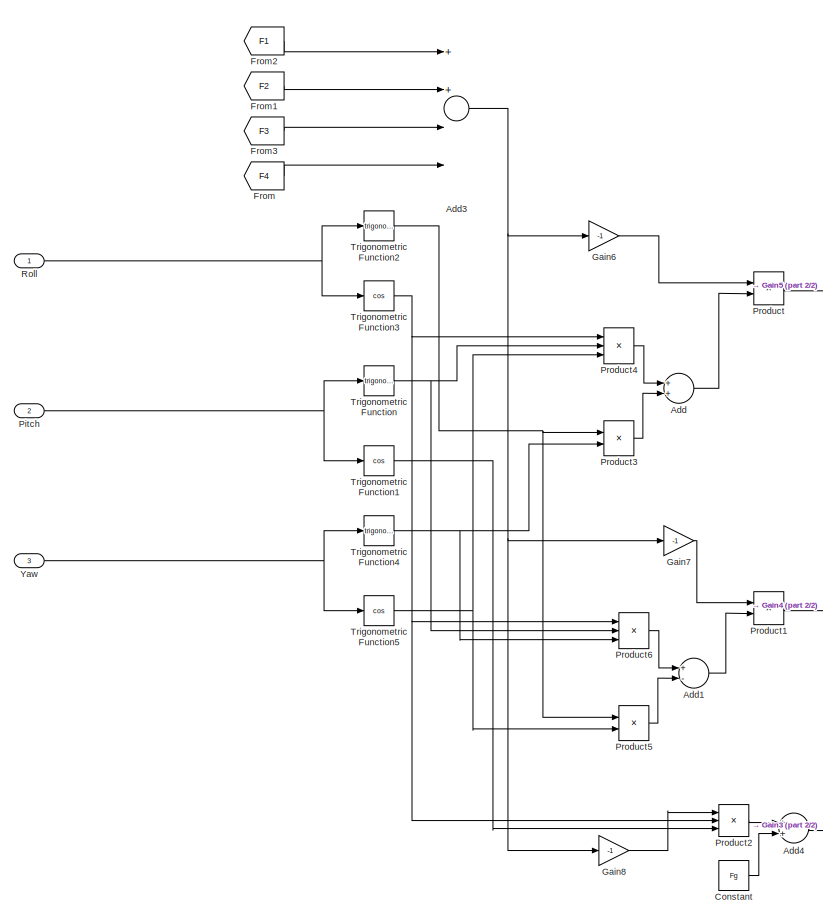
[diagram: Translational Model - part 1/2, left side, full height]
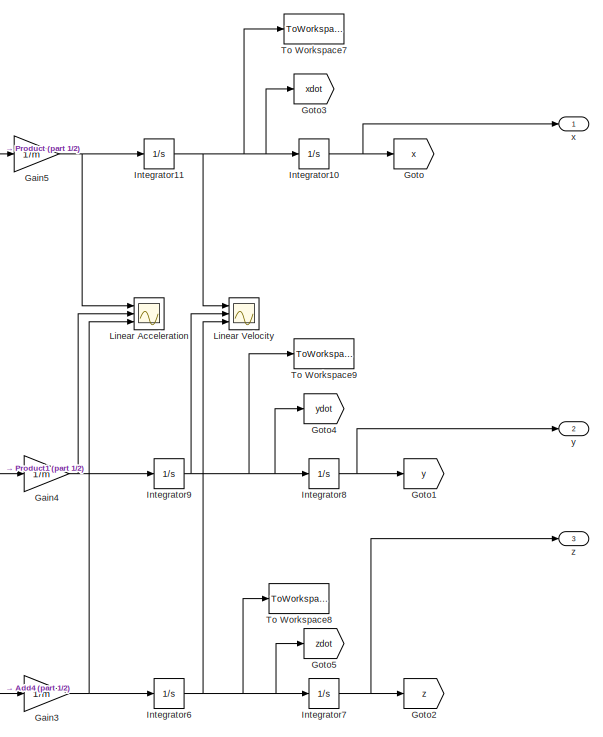
[diagram: Translational Model - part 2/2, right side, full height]
BLOCK [SubSystem] Translational Model
  Ports = [3, 3]
  RequestExecContextInheritance = off
  Variant = off
BLOCK [SubSystem] Translational Model Linear
  Ports = [2, 3]
  RequestExecContextInheritance = off
  Variant = off
BLOCK [Sum] Translational Model Linear/Add3
  InputSameDT = off
  Inputs = 4
  OutDataTypeStr = Inherit: Inherit via internal rule
  Ports = [4, 1]
  SaturateOnIntegerOverflow = off
BLOCK [From] Translational Model Linear/From
  GotoTag = F4Lin
  TagVisibility = global
BLOCK [From] Translational Model Linear/From1
  GotoTag = F2Lin
  TagVisibility = global
BLOCK [From] Translational Model Linear/From2
  GotoTag = F1Lin
  TagVisibility = global
BLOCK [From] Translational Model Linear/From3
  GotoTag = F3Lin
  TagVisibility = global
BLOCK [Gain] Translational Model Linear/Gain
  Gain = 1/m
  OutDataTypeStr = Inherit: Inherit via internal rule
  ParamDataTypeStr = Inherit: Inherit via internal rule
  SaturateOnIntegerOverflow = off
BLOCK [Gain] Translational Model Linear/Gain1
  Gain = kth*4*w1_bar^2
  OutDataTypeStr = Inherit: Inherit via internal rule
  ParamDataTypeStr = Inherit: Inherit via internal rule
  SaturateOnIntegerOverflow = off
BLOCK [Gain] Translational Model Linear/Gain2
  Gain = -kth*4*w1_bar^2
  OutDataTypeStr = Inherit: Inherit via internal rule
  ParamDataTypeStr = Inherit: Inherit via internal rule
  SaturateOnIntegerOverflow = off
BLOCK [Gain] Translational Model Linear/Gain3
  Gain = 1/m
  OutDataTypeStr = Inherit: Inherit via internal rule
  ParamDataTypeStr = Inherit: Inherit via internal rule
  SaturateOnIntegerOverflow = off
BLOCK [Gain] Translational Model Linear/Gain4
  Gain = 1/m
  OutDataTypeStr = Inherit: Inherit via internal rule
  ParamDataTypeStr = Inherit: Inherit via internal rule
  SaturateOnIntegerOverflow = off
BLOCK [Gain] Translational Model Linear/Gain9
  Gain = -1
  OutDataTypeStr = Inherit: Inherit via internal rule
  ParamDataTypeStr = Inherit: Inherit via internal rule
  SaturateOnIntegerOverflow = off
BLOCK [Goto] Translational Model Linear/Goto10
  GotoTag = yLin
  TagVisibility = global
BLOCK [Goto] Translational Model Linear/Goto11
  GotoTag = zLin
  TagVisibility = global
BLOCK [Goto] Translational Model Linear/Goto6
  GotoTag = xdotLin
  TagVisibility = global
BLOCK [Goto] Translational Model Linear/Goto7
  GotoTag = ydotLin
  TagVisibility = global
BLOCK [Goto] Translational Model Linear/Goto8
  GotoTag = xLin
  TagVisibility = global
BLOCK [Goto] Translational Model Linear/Goto9
  GotoTag = zdotLin
  TagVisibility = global
BLOCK [Integrator] Translational Model Linear/Integrator1
  Ports = [1, 1]
BLOCK [Integrator] Translational Model Linear/Integrator12
  Ports = [1, 1]
BLOCK [Integrator] Translational Model Linear/Integrator2
  Ports = [1, 1]
BLOCK [Integrator] Translational Model Linear/Integrator3
  Ports = [1, 1]
BLOCK [Integrator] Translational Model Linear/Integrator4
  Ports = [1, 1]
BLOCK [Integrator] Translational Model Linear/Integrator5
  Ports = [1, 1]
BLOCK [Inport] Translational Model Linear/Pitch
  IconDisplay = Port number
  Port = 2
BLOCK [Inport] Translational Model Linear/Roll
  IconDisplay = Port number
BLOCK [ToWorkspace] Translational Model Linear/To Workspace16
  FixptAsFi = on
  MaxDataPoints = inf
  Ports = [1]
  SampleTime = -1
  Save2DSignal = 3-D array (concatenate along third dimension)
  SaveFormat = Timeseries
  VariableName = xdot_lin
BLOCK [ToWorkspace] Translational Model Linear/To Workspace17
  FixptAsFi = on
  MaxDataPoints = inf
  Ports = [1]
  SampleTime = -1
  Save2DSignal = 3-D array (concatenate along third dimension)
  SaveFormat = Timeseries
  VariableName = zdot_lin
BLOCK [ToWorkspace] Translational Model Linear/To Workspace18
  FixptAsFi = on
  MaxDataPoints = inf
  Ports = [1]
  SampleTime = -1
  Save2DSignal = 3-D array (concatenate along third dimension)
  SaveFormat = Timeseries
  VariableName = ydot_lin
BLOCK [Scope] Translational Model Linear/Translational Position
  NumInputPorts = 3
  Ports = [3]
  ScopeSpecificationString = Simulink.scopes.TimeScopeBlockCfg('CurrentConfiguration', extmgr.ConfigurationSet(extmgr.Configuration('Core','General UI',true),extmgr.Configuration('Core','Source UI',true),extmgr.Configuration('Sources','WiredSimulink',true,'DataLoggingVariableName','ScopeData1'),extmgr.Configuration('Visuals','Time Domain',true,'SerializedDisplays',{struct('MinYLimReal','-15.97739','MaxYLimReal','6.19108','YLa...<+1454ch>
BLOCK [Outport] Translational Model Linear/x
  IconDisplay = Port number
BLOCK [Outport] Translational Model Linear/y
  IconDisplay = Port number
  Port = 2
BLOCK [Outport] Translational Model Linear/z
  IconDisplay = Port number
  Port = 3
BLOCK [Sum] Translational Model/Add
  InputSameDT = off
  OutDataTypeStr = Inherit: Inherit via internal rule
  Ports = [2, 1]
  SaturateOnIntegerOverflow = off
BLOCK [Sum] Translational Model/Add1
  InputSameDT = off
  Inputs = +-
  OutDataTypeStr = Inherit: Inherit via internal rule
  Ports = [2, 1]
  SaturateOnIntegerOverflow = off
BLOCK [Sum] Translational Model/Add3
  InputSameDT = off
  Inputs = 4
  OutDataTypeStr = Inherit: Inherit via internal rule
  Ports = [4, 1]
  SaturateOnIntegerOverflow = off
BLOCK [Sum] Translational Model/Add4
  InputSameDT = off
  Inputs = 2
  OutDataTypeStr = Inherit: Inherit via internal rule
  Ports = [2, 1]
  SaturateOnIntegerOverflow = off
BLOCK [Constant] Translational Model/Constant
  Value = Fg
BLOCK [From] Translational Model/From
  GotoTag = F4
  TagVisibility = global
BLOCK [From] Translational Model/From1
  GotoTag = F2
  TagVisibility = global
BLOCK [From] Translational Model/From2
  GotoTag = F1
  TagVisibility = global
BLOCK [From] Translational Model/From3
  GotoTag = F3
  TagVisibility = global
BLOCK [Gain] Translational Model/Gain3
  Gain = 1/m
  OutDataTypeStr = Inherit: Inherit via internal rule
  ParamDataTypeStr = Inherit: Inherit via internal rule
  SaturateOnIntegerOverflow = off
BLOCK [Gain] Translational Model/Gain4
  Gain = 1/m
  OutDataTypeStr = Inherit: Inherit via internal rule
  ParamDataTypeStr = Inherit: Inherit via internal rule
  SaturateOnIntegerOverflow = off
BLOCK [Gain] Translational Model/Gain5
  Gain = 1/m
  OutDataTypeStr = Inherit: Inherit via internal rule
  ParamDataTypeStr = Inherit: Inherit via internal rule
  SaturateOnIntegerOverflow = off
BLOCK [Gain] Translational Model/Gain6
  Gain = -1
  OutDataTypeStr = Inherit: Inherit via internal rule
  ParamDataTypeStr = Inherit: Inherit via internal rule
  SaturateOnIntegerOverflow = off
BLOCK [Gain] Translational Model/Gain7
  Gain = -1
  OutDataTypeStr = Inherit: Inherit via internal rule
  ParamDataTypeStr = Inherit: Inherit via internal rule
  SaturateOnIntegerOverflow = off
BLOCK [Gain] Translational Model/Gain8
  Gain = -1
  OutDataTypeStr = Inherit: Inherit via internal rule
  ParamDataTypeStr = Inherit: Inherit via internal rule
  SaturateOnIntegerOverflow = off
BLOCK [Goto] Translational Model/Goto
  GotoTag = x
  TagVisibility = global
BLOCK [Goto] Translational Model/Goto1
  GotoTag = y
  TagVisibility = global
BLOCK [Goto] Translational Model/Goto2
  GotoTag = z
  TagVisibility = global
BLOCK [Goto] Translational Model/Goto3
  GotoTag = xdot
  TagVisibility = global
BLOCK [Goto] Translational Model/Goto4
  GotoTag = ydot
  TagVisibility = global
BLOCK [Goto] Translational Model/Goto5
  GotoTag = zdot
  TagVisibility = global
BLOCK [Integrator] Translational Model/Integrator10
  Ports = [1, 1]
BLOCK [Integrator] Translational Model/Integrator11
  Ports = [1, 1]
BLOCK [Integrator] Translational Model/Integrator6
  Ports = [1, 1]
BLOCK [Integrator] Translational Model/Integrator7
  Ports = [1, 1]
BLOCK [Integrator] Translational Model/Integrator8
  Ports = [1, 1]
BLOCK [Integrator] Translational Model/Integrator9
  Ports = [1, 1]
BLOCK [Scope] Translational Model/Linear Acceleration
  NumInputPorts = 3
  Ports = [3]
  ScopeSpecificationString = Simulink.scopes.TimeScopeBlockCfg('CurrentConfiguration', extmgr.ConfigurationSet(extmgr.Configuration('Core','General UI',true),extmgr.Configuration('Core','Source UI',true),extmgr.Configuration('Sources','WiredSimulink',true,'DataLoggingVariableName','ScopeData1','DataLoggingLimitDataPoints',true,'DataLoggingSaveFormat','Array','DataLoggingDecimation','1','DataLoggingDecimateData',true),extmgr.C...<+165ch>
BLOCK [Scope] Translational Model/Linear Velocity
  NumInputPorts = 3
  Ports = [3]
  ScopeSpecificationString = Simulink.scopes.TimeScopeBlockCfg('CurrentConfiguration', extmgr.ConfigurationSet(extmgr.Configuration('Core','General UI',true),extmgr.Configuration('Core','Source UI',true),extmgr.Configuration('Sources','WiredSimulink',true,'DataLoggingVariableName','ScopeData2','DataLoggingLimitDataPoints',true,'DataLoggingSaveFormat','Array','DataLoggingDecimation','1','DataLoggingDecimateData',true),extmgr.C...<+165ch>
BLOCK [Inport] Translational Model/Pitch
  IconDisplay = Port number
  Port = 2
BLOCK [Product] Translational Model/Product
  InputSameDT = off
  OutDataTypeStr = Inherit: Inherit via internal rule
  Ports = [2, 1]
  RndMeth = Floor
  SaturateOnIntegerOverflow = off
BLOCK [Product] Translational Model/Product1
  InputSameDT = off
  OutDataTypeStr = Inherit: Inherit via internal rule
  Ports = [2, 1]
  RndMeth = Floor
  SaturateOnIntegerOverflow = off
BLOCK [Product] Translational Model/Product2
  InputSameDT = off
  Inputs = 3
  OutDataTypeStr = Inherit: Inherit via internal rule
  Ports = [3, 1]
  RndMeth = Floor
  SaturateOnIntegerOverflow = off
BLOCK [Product] Translational Model/Product3
  InputSameDT = off
  OutDataTypeStr = Inherit: Inherit via internal rule
  Ports = [2, 1]
  RndMeth = Floor
  SaturateOnIntegerOverflow = off
BLOCK [Product] Translational Model/Product4
  InputSameDT = off
  Inputs = 3
  OutDataTypeStr = Inherit: Inherit via internal rule
  Ports = [3, 1]
  RndMeth = Floor
  SaturateOnIntegerOverflow = off
BLOCK [Product] Translational Model/Product5
  InputSameDT = off
  OutDataTypeStr = Inherit: Inherit via internal rule
  Ports = [2, 1]
  RndMeth = Floor
  SaturateOnIntegerOverflow = off
BLOCK [Product] Translational Model/Product6
  InputSameDT = off
  Inputs = 3
  OutDataTypeStr = Inherit: Inherit via internal rule
  Ports = [3, 1]
  RndMeth = Floor
  SaturateOnIntegerOverflow = off
BLOCK [Inport] Translational Model/Roll
  IconDisplay = Port number
BLOCK [ToWorkspace] Translational Model/To Workspace7
  FixptAsFi = on
  MaxDataPoints = inf
  Ports = [1]
  SampleTime = -1
  Save2DSignal = 3-D array (concatenate along third dimension)
  SaveFormat = Timeseries
  VariableName = xdot
BLOCK [ToWorkspace] Translational Model/To Workspace8
  FixptAsFi = on
  MaxDataPoints = inf
  Ports = [1]
  SampleTime = -1
  Save2DSignal = 3-D array (concatenate along third dimension)
  SaveFormat = Timeseries
  VariableName = zdot
BLOCK [ToWorkspace] Translational Model/To Workspace9
  FixptAsFi = on
  MaxDataPoints = inf
  Ports = [1]
  SampleTime = -1
  Save2DSignal = 3-D array (concatenate along third dimension)
  SaveFormat = Timeseries
  VariableName = ydot
BLOCK [Trigonometry] Translational Model/Trigonometric Function
  Ports = [1, 1]
BLOCK [Trigonometry] Translational Model/Trigonometric Function1
  Operator = cos
  Ports = [1, 1]
BLOCK [Trigonometry] Translational Model/Trigonometric Function2
  Ports = [1, 1]
BLOCK [Trigonometry] Translational Model/Trigonometric Function3
  Operator = cos
  Ports = [1, 1]
BLOCK [Trigonometry] Translational Model/Trigonometric Function4
  Ports = [1, 1]
BLOCK [Trigonometry] Translational Model/Trigonometric Function5
  Operator = cos
  Ports = [1, 1]
BLOCK [Inport] Translational Model/Yaw 
  IconDisplay = Port number
  Port = 3
BLOCK [Outport] Translational Model/x
  IconDisplay = Port number
BLOCK [Outport] Translational Model/y
  IconDisplay = Port number
  Port = 2
BLOCK [Outport] Translational Model/z
  IconDisplay = Port number
  Port = 3
BLOCK [Scope] Translational Position
  NumInputPorts = 3
  Ports = [3]
  ScopeSpecificationString = Simulink.scopes.TimeScopeBlockCfg('CurrentConfiguration', extmgr.ConfigurationSet(extmgr.Configuration('Core','General UI',true),extmgr.Configuration('Core','Source UI',true),extmgr.Configuration('Sources','WiredSimulink',true,'DataLoggingVariableName','ScopeData5','DataLoggingSaveFormat','Array','DataLoggingDecimation','1','DataLoggingDecimateData',true),extmgr.Configuration('Visuals','Time Domai...<+1640ch>
BLOCK [Scope] Translational Position Linear
  NumInputPorts = 3
  Ports = [3]
  ScopeSpecificationString = Simulink.scopes.TimeScopeBlockCfg('CurrentConfiguration', extmgr.ConfigurationSet(extmgr.Configuration('Core','General UI',true),extmgr.Configuration('Core','Source UI',true),extmgr.Configuration('Sources','WiredSimulink',true,'DataLoggingVariableName','ScopeData1'),extmgr.Configuration('Visuals','Time Domain',true,'SerializedDisplays',{struct('MinYLimReal','-0.1763','MaxYLimReal','1.57199','YLabe...<+1475ch>
BLOCK [SubSystem] Velocity Mixer
  Ports = [5, 4]
  RequestExecContextInheritance = off
  Variant = off
BLOCK [Sum] Velocity Mixer/Add
  InputSameDT = off
  Inputs = +++
  OutDataTypeStr = Inherit: Inherit via internal rule
  Ports = [3, 1]
  SaturateOnIntegerOverflow = off
BLOCK [Sum] Velocity Mixer/Add1
  InputSameDT = off
  Inputs = +++
  OutDataTypeStr = Inherit: Inherit via internal rule
  Ports = [3, 1]
  SaturateOnIntegerOverflow = off
BLOCK [Sum] Velocity Mixer/Add2
  InputSameDT = off
  Inputs = +++
  OutDataTypeStr = Inherit: Inherit via internal rule
  Ports = [3, 1]
  SaturateOnIntegerOverflow = off
BLOCK [Sum] Velocity Mixer/Add5
  InputSameDT = off
  Inputs = +++
  OutDataTypeStr = Inherit: Inherit via internal rule
  Ports = [3, 1]
  SaturateOnIntegerOverflow = off
BLOCK [Sum] Velocity Mixer/Add6
  InputSameDT = off
  Inputs = 4
  OutDataTypeStr = Inherit: Inherit via internal rule
  Ports = [4, 1]
  SaturateOnIntegerOverflow = off
BLOCK [Sum] Velocity Mixer/Add7
  InputSameDT = off
  Inputs = -+
  OutDataTypeStr = Inherit: Inherit via internal rule
  Ports = [2, 1]
  SaturateOnIntegerOverflow = off
BLOCK [Constant] Velocity Mixer/Constant5
  Value = w4_bar
BLOCK [Constant] Velocity Mixer/Constant6
  Value = w2_bar
BLOCK [Constant] Velocity Mixer/Constant7
  Value = w1_bar
BLOCK [Constant] Velocity Mixer/Constant8
  Value = w3_bar
BLOCK [Gain] Velocity Mixer/Gain
  Gain = 1/4
  OutDataTypeStr = Inherit: Inherit via internal rule
  ParamDataTypeStr = Inherit: Inherit via internal rule
  SaturateOnIntegerOverflow = off
BLOCK [Saturate] Velocity Mixer/Saturation1
  InputPortMap = u0
  LowerLimit = 300
  Ports = [1, 1]
  UpperLimit = 500
BLOCK [Saturate] Velocity Mixer/Saturation2
  InputPortMap = u0
  LowerLimit = 300
  Ports = [1, 1]
  UpperLimit = 500
BLOCK [Saturate] Velocity Mixer/Saturation3
  InputPortMap = u0
  LowerLimit = 300
  Ports = [1, 1]
  UpperLimit = 500
BLOCK [Saturate] Velocity Mixer/Saturation4
  InputPortMap = u0
  LowerLimit = 300
  Ports = [1, 1]
  UpperLimit = 500
BLOCK [Inport] Velocity Mixer/w1
  IconDisplay = Port number
BLOCK [Outport] Velocity Mixer/w1_final
  IconDisplay = Port number
BLOCK [Inport] Velocity Mixer/w2
  IconDisplay = Port number
  Port = 2
BLOCK [Outport] Velocity Mixer/w2_final
  IconDisplay = Port number
  Port = 2
BLOCK [Inport] Velocity Mixer/w3
  IconDisplay = Port number
  Port = 3
BLOCK [Outport] Velocity Mixer/w3_final
  IconDisplay = Port number
  Port = 3
BLOCK [Inport] Velocity Mixer/w4
  IconDisplay = Port number
  Port = 4
BLOCK [Outport] Velocity Mixer/w4_final
  IconDisplay = Port number
  Port = 4
BLOCK [Inport] Velocity Mixer/wz
  IconDisplay = Port number
  Port = 5
BLOCK [SubSystem] Velocity Mixer1
  Ports = [5, 4]
  RequestExecContextInheritance = off
  Variant = off
BLOCK [Sum] Velocity Mixer1/Add
  InputSameDT = off
  OutDataTypeStr = Inherit: Inherit via internal rule
  Ports = [2, 1]
  SaturateOnIntegerOverflow = off
BLOCK [Sum] Velocity Mixer1/Add1
  InputSameDT = off
  OutDataTypeStr = Inherit: Inherit via internal rule
  Ports = [2, 1]
  SaturateOnIntegerOverflow = off
BLOCK [Sum] Velocity Mixer1/Add2
  InputSameDT = off
  OutDataTypeStr = Inherit: Inherit via internal rule
  Ports = [2, 1]
  SaturateOnIntegerOverflow = off
BLOCK [Sum] Velocity Mixer1/Add5
  InputSameDT = off
  OutDataTypeStr = Inherit: Inherit via internal rule
  Ports = [2, 1]
  SaturateOnIntegerOverflow = off
BLOCK [Sum] Velocity Mixer1/Add6
  InputSameDT = off
  Inputs = 4
  OutDataTypeStr = Inherit: Inherit via internal rule
  Ports = [4, 1]
  SaturateOnIntegerOverflow = off
BLOCK [Sum] Velocity Mixer1/Add7
  InputSameDT = off
  Inputs = -+
  OutDataTypeStr = Inherit: Inherit via internal rule
  Ports = [2, 1]
  SaturateOnIntegerOverflow = off
BLOCK [Gain] Velocity Mixer1/Gain
  Gain = 1/4
  OutDataTypeStr = Inherit: Inherit via internal rule
  ParamDataTypeStr = Inherit: Inherit via internal rule
  SaturateOnIntegerOverflow = off
BLOCK [Saturate] Velocity Mixer1/Saturation1
  InputPortMap = u0
  LowerLimit = -100
  Ports = [1, 1]
  UpperLimit = 100
BLOCK [Saturate] Velocity Mixer1/Saturation2
  InputPortMap = u0
  LowerLimit = -100
  Ports = [1, 1]
  UpperLimit = 100
BLOCK [Saturate] Velocity Mixer1/Saturation3
  InputPortMap = u0
  LowerLimit = -100
  Ports = [1, 1]
  UpperLimit = 100
BLOCK [Saturate] Velocity Mixer1/Saturation4
  InputPortMap = u0
  LowerLimit = -100
  Ports = [1, 1]
  UpperLimit = 100
BLOCK [Inport] Velocity Mixer1/w1
  IconDisplay = Port number
BLOCK [Outport] Velocity Mixer1/w1_final
  IconDisplay = Port number
BLOCK [Inport] Velocity Mixer1/w2
  IconDisplay = Port number
  Port = 2
BLOCK [Outport] Velocity Mixer1/w2_final
  IconDisplay = Port number
  Port = 2
BLOCK [Inport] Velocity Mixer1/w3
  IconDisplay = Port number
  Port = 3
BLOCK [Outport] Velocity Mixer1/w3_final
  IconDisplay = Port number
  Port = 3
BLOCK [Inport] Velocity Mixer1/w4
  IconDisplay = Port number
  Port = 4
BLOCK [Outport] Velocity Mixer1/w4_final
  IconDisplay = Port number
  Port = 4
BLOCK [Inport] Velocity Mixer1/wz
  IconDisplay = Port number
  Port = 5
BLOCK [ZeroPole] Zero-Pole1
  Gain = [K_zdot]
  Poles = [0]
  Zeros = [Z_zdot]
BLOCK [ZeroPole] Zero-Pole3
  Gain = [K_zdot]
  Poles = [0]
  Zeros = [Z_zdot]
LINE Attitude Controller/From10:1 -> Attitude Controller/Reduced Order Observer:5
LINE Attitude Controller/From11:1 -> Attitude Controller/Reduced Order Observer:4
LINE Attitude Controller/From12:1 -> Attitude Controller/Reduced Order Observer:6
LINE Attitude Controller/From13:1 -> Attitude Controller/Sum2:2
LINE Attitude Controller/From14:1 -> Attitude Controller/Sum1:2
LINE Attitude Controller/From15:1 -> Attitude Controller/Sum:2
LINE Attitude Controller/From16:1 -> Attitude Controller/Reduced Order Observer:7
NET Attitude Controller/From4:1 -> Attitude Controller/Reduced Order Observer:1, Attitude Controller/State-Feedback :1
LINE Attitude Controller/From5:1 -> Attitude Controller/Scope4:2
LINE Attitude Controller/From6:1 -> Attitude Controller/Scope7:2
NET Attitude Controller/From7:1 -> Attitude Controller/Reduced Order Observer:2, Attitude Controller/State-Feedback :2
LINE Attitude Controller/From8:1 -> Attitude Controller/Scope8:2
NET Attitude Controller/From9:1 -> Attitude Controller/Reduced Order Observer:3, Attitude Controller/State-Feedback :3
NET Attitude Controller/Integral Control (Reference Input):1 -> Attitude Controller/Scope5:1, Attitude Controller/w1_:1
NET Attitude Controller/Integral Control (Reference Input):2 -> Attitude Controller/Scope5:2, Attitude Controller/w2_:1
NET Attitude Controller/Integral Control (Reference Input):3 -> Attitude Controller/Scope5:3, Attitude Controller/w3_:1
NET Attitude Controller/Integral Control (Reference Input):4 -> Attitude Controller/Scope5:4, Attitude Controller/w4_:1
LINE Attitude Controller/Integrator12:1 -> Attitude Controller/Integral Control (Reference Input):1
LINE Attitude Controller/Integrator13:1 -> Attitude Controller/Integral Control (Reference Input):2
LINE Attitude Controller/Integrator14:1 -> Attitude Controller/Integral Control (Reference Input):3
LINE Attitude Controller/Pitch_ref:1 -> Attitude Controller/Sum1:1
LINE Attitude Controller/Reduced Order Observer/-L :1 -> Attitude Controller/Reduced Order Observer/Add6:1
LINE Attitude Controller/Reduced Order Observer/-L :2 -> Attitude Controller/Reduced Order Observer/Add7:1
LINE Attitude Controller/Reduced Order Observer/-L :3 -> Attitude Controller/Reduced Order Observer/Add8:1
LINE Attitude Controller/Reduced Order Observer/Add3:1 -> Attitude Controller/Reduced Order Observer/Integrator9:1
LINE Attitude Controller/Reduced Order Observer/Add4:1 -> Attitude Controller/Reduced Order Observer/Integrator10:1
LINE Attitude Controller/Reduced Order Observer/Add5:1 -> Attitude Controller/Reduced Order Observer/Integrator11:1
NET Attitude Controller/Reduced Order Observer/Add6:1 -> Attitude Controller/Reduced Order Observer/LA12:1, Attitude Controller/Reduced Order Observer/Out1:1
NET Attitude Controller/Reduced Order Observer/Add7:1 -> Attitude Controller/Reduced Order Observer/LA12:2, Attitude Controller/Reduced Order Observer/Out2:1
NET Attitude Controller/Reduced Order Observer/Add8:1 -> Attitude Controller/Reduced Order Observer/LA12:3, Attitude Controller/Reduced Order Observer/Out3:1
LINE Attitude Controller/Reduced Order Observer/B2:1 -> Attitude Controller/Reduced Order Observer/Add3:1
LINE Attitude Controller/Reduced Order Observer/B2:2 -> Attitude Controller/Reduced Order Observer/Add4:1
LINE Attitude Controller/Reduced Order Observer/B2:3 -> Attitude Controller/Reduced Order Observer/Add5:1
LINE Attitude Controller/Reduced Order Observer/Integrator10:1 -> Attitude Controller/Reduced Order Observer/Add7:2
LINE Attitude Controller/Reduced Order Observer/Integrator11:1 -> Attitude Controller/Reduced Order Observer/Add8:2
LINE Attitude Controller/Reduced Order Observer/Integrator9:1 -> Attitude Controller/Reduced Order Observer/Add6:2
LINE Attitude Controller/Reduced Order Observer/LA12:1 -> Attitude Controller/Reduced Order Observer/Add3:2
LINE Attitude Controller/Reduced Order Observer/LA12:2 -> Attitude Controller/Reduced Order Observer/Add4:2
LINE Attitude Controller/Reduced Order Observer/LA12:3 -> Attitude Controller/Reduced Order Observer/Add5:2
LINE Attitude Controller/Reduced Order Observer/u1:1 -> Attitude Controller/Reduced Order Observer/B2:1
LINE Attitude Controller/Reduced Order Observer/u2:1 -> Attitude Controller/Reduced Order Observer/B2:2
LINE Attitude Controller/Reduced Order Observer/u3:1 -> Attitude Controller/Reduced Order Observer/B2:3
LINE Attitude Controller/Reduced Order Observer/u4:1 -> Attitude Controller/Reduced Order Observer/B2:4
LINE Attitude Controller/Reduced Order Observer/x1:1 -> Attitude Controller/Reduced Order Observer/-L :1
LINE Attitude Controller/Reduced Order Observer/x2:1 -> Attitude Controller/Reduced Order Observer/-L :2
LINE Attitude Controller/Reduced Order Observer/x3:1 -> Attitude Controller/Reduced Order Observer/-L :3
NET Attitude Controller/Reduced Order Observer:1 -> Attitude Controller/Scope4:1, Attitude Controller/State-Feedback :4
NET Attitude Controller/Reduced Order Observer:2 -> Attitude Controller/Scope7:1, Attitude Controller/State-Feedback :5
NET Attitude Controller/Reduced Order Observer:3 -> Attitude Controller/Scope8:1, Attitude Controller/State-Feedback :6
LINE Attitude Controller/Roll_ref:1 -> Attitude Controller/Sum2:1
NET Attitude Controller/State-Feedback :1 -> Attitude Controller/Scope6:1, Attitude Controller/w1_:2
NET Attitude Controller/State-Feedback :2 -> Attitude Controller/Scope6:2, Attitude Controller/w2_:2
NET Attitude Controller/State-Feedback :3 -> Attitude Controller/Scope6:3, Attitude Controller/w3_:2
NET Attitude Controller/State-Feedback :4 -> Attitude Controller/Scope6:4, Attitude Controller/w4_:2
LINE Attitude Controller/Sum1:1 -> Attitude Controller/Integrator13:1
LINE Attitude Controller/Sum2:1 -> Attitude Controller/Integrator12:1
LINE Attitude Controller/Sum:1 -> Attitude Controller/Integrator14:1
LINE Attitude Controller/Yaw_ref:1 -> Attitude Controller/Sum:1
NET Attitude Controller/w1_:1 -> Attitude Controller/Goto6:1, Attitude Controller/w1:1
NET Attitude Controller/w2_:1 -> Attitude Controller/Goto5:1, Attitude Controller/w2:1
NET Attitude Controller/w3_:1 -> Attitude Controller/Goto7:1, Attitude Controller/w3:1
NET Attitude Controller/w4_:1 -> Attitude Controller/Goto4:1, Attitude Controller/w4:1
LINE Attitude Controller1/From10:1 -> Attitude Controller1/Reduced Order Observer:5
LINE Attitude Controller1/From11:1 -> Attitude Controller1/Reduced Order Observer:4
LINE Attitude Controller1/From12:1 -> Attitude Controller1/Reduced Order Observer:6
LINE Attitude Controller1/From13:1 -> Attitude Controller1/Sum2:2
LINE Attitude Controller1/From14:1 -> Attitude Controller1/Sum1:2
LINE Attitude Controller1/From15:1 -> Attitude Controller1/Sum:2
LINE Attitude Controller1/From16:1 -> Attitude Controller1/Reduced Order Observer:7
NET Attitude Controller1/From4:1 -> Attitude Controller1/Reduced Order Observer:1, Attitude Controller1/State-Feedback :1
LINE Attitude Controller1/From5:1 -> Attitude Controller1/Scope4:2
LINE Attitude Controller1/From6:1 -> Attitude Controller1/Scope7:2
NET Attitude Controller1/From7:1 -> Attitude Controller1/Reduced Order Observer:2, Attitude Controller1/State-Feedback :2
LINE Attitude Controller1/From8:1 -> Attitude Controller1/Scope8:2
NET Attitude Controller1/From9:1 -> Attitude Controller1/Reduced Order Observer:3, Attitude Controller1/State-Feedback :3
NET Attitude Controller1/Integral Control (Reference Input):1 -> Attitude Controller1/Scope5:1, Attitude Controller1/w1_:1
NET Attitude Controller1/Integral Control (Reference Input):2 -> Attitude Controller1/Scope5:2, Attitude Controller1/w2_:1
NET Attitude Controller1/Integral Control (Reference Input):3 -> Attitude Controller1/Scope5:3, Attitude Controller1/w3_:1
NET Attitude Controller1/Integral Control (Reference Input):4 -> Attitude Controller1/Scope5:4, Attitude Controller1/w4_:1
LINE Attitude Controller1/Integrator12:1 -> Attitude Controller1/Integral Control (Reference Input):1
LINE Attitude Controller1/Integrator13:1 -> Attitude Controller1/Integral Control (Reference Input):2
LINE Attitude Controller1/Integrator14:1 -> Attitude Controller1/Integral Control (Reference Input):3
LINE Attitude Controller1/Pitch_ref:1 -> Attitude Controller1/Sum1:1
LINE Attitude Controller1/Reduced Order Observer/-L :1 -> Attitude Controller1/Reduced Order Observer/Add6:1
LINE Attitude Controller1/Reduced Order Observer/-L :2 -> Attitude Controller1/Reduced Order Observer/Add7:1
LINE Attitude Controller1/Reduced Order Observer/-L :3 -> Attitude Controller1/Reduced Order Observer/Add8:1
LINE Attitude Controller1/Reduced Order Observer/Add3:1 -> Attitude Controller1/Reduced Order Observer/Integrator9:1
LINE Attitude Controller1/Reduced Order Observer/Add4:1 -> Attitude Controller1/Reduced Order Observer/Integrator10:1
LINE Attitude Controller1/Reduced Order Observer/Add5:1 -> Attitude Controller1/Reduced Order Observer/Integrator11:1
NET Attitude Controller1/Reduced Order Observer/Add6:1 -> Attitude Controller1/Reduced Order Observer/LA12:1, Attitude Controller1/Reduced Order Observer/Out1:1
NET Attitude Controller1/Reduced Order Observer/Add7:1 -> Attitude Controller1/Reduced Order Observer/LA12:2, Attitude Controller1/Reduced Order Observer/Out2:1
NET Attitude Controller1/Reduced Order Observer/Add8:1 -> Attitude Controller1/Reduced Order Observer/LA12:3, Attitude Controller1/Reduced Order Observer/Out3:1
LINE Attitude Controller1/Reduced Order Observer/B2:1 -> Attitude Controller1/Reduced Order Observer/Add3:1
LINE Attitude Controller1/Reduced Order Observer/B2:2 -> Attitude Controller1/Reduced Order Observer/Add4:1
LINE Attitude Controller1/Reduced Order Observer/B2:3 -> Attitude Controller1/Reduced Order Observer/Add5:1
LINE Attitude Controller1/Reduced Order Observer/Integrator10:1 -> Attitude Controller1/Reduced Order Observer/Add7:2
LINE Attitude Controller1/Reduced Order Observer/Integrator11:1 -> Attitude Controller1/Reduced Order Observer/Add8:2
LINE Attitude Controller1/Reduced Order Observer/Integrator9:1 -> Attitude Controller1/Reduced Order Observer/Add6:2
LINE Attitude Controller1/Reduced Order Observer/LA12:1 -> Attitude Controller1/Reduced Order Observer/Add3:2
LINE Attitude Controller1/Reduced Order Observer/LA12:2 -> Attitude Controller1/Reduced Order Observer/Add4:2
LINE Attitude Controller1/Reduced Order Observer/LA12:3 -> Attitude Controller1/Reduced Order Observer/Add5:2
LINE Attitude Controller1/Reduced Order Observer/u1:1 -> Attitude Controller1/Reduced Order Observer/B2:1
LINE Attitude Controller1/Reduced Order Observer/u2:1 -> Attitude Controller1/Reduced Order Observer/B2:2
LINE Attitude Controller1/Reduced Order Observer/u3:1 -> Attitude Controller1/Reduced Order Observer/B2:3
LINE Attitude Controller1/Reduced Order Observer/u4:1 -> Attitude Controller1/Reduced Order Observer/B2:4
LINE Attitude Controller1/Reduced Order Observer/x1:1 -> Attitude Controller1/Reduced Order Observer/-L :1
LINE Attitude Controller1/Reduced Order Observer/x2:1 -> Attitude Controller1/Reduced Order Observer/-L :2
LINE Attitude Controller1/Reduced Order Observer/x3:1 -> Attitude Controller1/Reduced Order Observer/-L :3
NET Attitude Controller1/Reduced Order Observer:1 -> Attitude Controller1/Scope4:1, Attitude Controller1/State-Feedback :4
NET Attitude Controller1/Reduced Order Observer:2 -> Attitude Controller1/Scope7:1, Attitude Controller1/State-Feedback :5
NET Attitude Controller1/Reduced Order Observer:3 -> Attitude Controller1/Scope8:1, Attitude Controller1/State-Feedback :6
LINE Attitude Controller1/Roll_ref:1 -> Attitude Controller1/Sum2:1
NET Attitude Controller1/State-Feedback :1 -> Attitude Controller1/Scope6:1, Attitude Controller1/w1_:2
NET Attitude Controller1/State-Feedback :2 -> Attitude Controller1/Scope6:2, Attitude Controller1/w2_:2
NET Attitude Controller1/State-Feedback :3 -> Attitude Controller1/Scope6:3, Attitude Controller1/w3_:2
NET Attitude Controller1/State-Feedback :4 -> Attitude Controller1/Scope6:4, Attitude Controller1/w4_:2
LINE Attitude Controller1/Sum1:1 -> Attitude Controller1/Integrator13:1
LINE Attitude Controller1/Sum2:1 -> Attitude Controller1/Integrator12:1
LINE Attitude Controller1/Sum:1 -> Attitude Controller1/Integrator14:1
LINE Attitude Controller1/Yaw_ref:1 -> Attitude Controller1/Sum:1
NET Attitude Controller1/w1_:1 -> Attitude Controller1/Goto6:1, Attitude Controller1/w1:1
NET Attitude Controller1/w2_:1 -> Attitude Controller1/Goto5:1, Attitude Controller1/w2:1
NET Attitude Controller1/w3_:1 -> Attitude Controller1/Goto7:1, Attitude Controller1/w3:1
NET Attitude Controller1/w4_:1 -> Attitude Controller1/Goto4:1, Attitude Controller1/w4:1
NET Attitude Controller1:1 -> Scope4:1, Velocity Mixer1:1
NET Attitude Controller1:2 -> Scope4:2, Velocity Mixer1:2
NET Attitude Controller1:3 -> Scope4:3, Velocity Mixer1:3
NET Attitude Controller1:4 -> Scope4:4, Velocity Mixer1:4
NET Attitude Controller:1 -> Scope2:1, Velocity Mixer:1
NET Attitude Controller:2 -> Scope2:2, Velocity Mixer:2
NET Attitude Controller:3 -> Scope2:3, Velocity Mixer:3
NET Attitude Controller:4 -> Scope2:4, Velocity Mixer:4
LINE Attitude Model Linear/Add1:1 -> Attitude Model Linear/Gain2:1
LINE Attitude Model Linear/Add2:1 -> Attitude Model Linear/Gain1:1
LINE Attitude Model Linear/Add:1 -> Attitude Model Linear/Gain:1
LINE Attitude Model Linear/Gain10:1 -> Attitude Model Linear/Add2:1
NET Attitude Model Linear/Gain1:1 -> Attitude Model Linear/Angular Acceleration:3, Attitude Model Linear/Integrator4:1
NET Attitude Model Linear/Gain2:1 -> Attitude Model Linear/Angular Acceleration:2, Attitude Model Linear/Integrator2:1
NET Attitude Model Linear/Gain3:1 -> Attitude Model Linear/Add:2, Attitude Model Linear/Goto3:1, Attitude Model Linear/Scope1:2
NET Attitude Model Linear/Gain4:1 -> Attitude Model Linear/Add1:1, Attitude Model Linear/Goto1:1, Attitude Model Linear/Scope1:1
NET Attitude Model Linear/Gain5:1 -> Attitude Model Linear/Add1:2, Attitude Model Linear/Goto2:1, Attitude Model Linear/Scope1:3
LINE Attitude Model Linear/Gain6:1 -> Attitude Model Linear/Add2:2
LINE Attitude Model Linear/Gain7:1 -> Attitude Model Linear/Add2:3
LINE Attitude Model Linear/Gain8:1 -> Attitude Model Linear/Add2:4
NET Attitude Model Linear/Gain9:1 -> Attitude Model Linear/Add:1, Attitude Model Linear/Goto:1, Attitude Model Linear/Scope1:4
NET Attitude Model Linear/Gain:1 -> Attitude Model Linear/Angular Acceleration:1, Attitude Model Linear/Integrator:1
NET Attitude Model Linear/Integrator1:1 -> Attitude Model Linear/Angular Position:1, Attitude Model Linear/Goto7:1, Attitude Model Linear/Roll:1
NET Attitude Model Linear/Integrator2:1 -> Attitude Model Linear/Angular Velocity:2, Attitude Model Linear/Goto5:1, Attitude Model Linear/Integrator3:1
NET Attitude Model Linear/Integrator3:1 -> Attitude Model Linear/Angular Position:2, Attitude Model Linear/Goto8:1, Attitude Model Linear/Pitch:1
NET Attitude Model Linear/Integrator4:1 -> Attitude Model Linear/Angular Velocity:3, Attitude Model Linear/Goto6:1, Attitude Model Linear/Integrator5:1
NET Attitude Model Linear/Integrator5:1 -> Attitude Model Linear/Angular Position:3, Attitude Model Linear/Goto9:1, Attitude Model Linear/Yaw:1
NET Attitude Model Linear/Integrator:1 -> Attitude Model Linear/Angular Velocity:1, Attitude Model Linear/Goto4:1, Attitude Model Linear/Integrator1:1
NET Attitude Model Linear/w1:1 -> Attitude Model Linear/Gain4:1, Attitude Model Linear/Gain7:1
NET Attitude Model Linear/w2:1 -> Attitude Model Linear/Gain3:1, Attitude Model Linear/Gain6:1
NET Attitude Model Linear/w3:1 -> Attitude Model Linear/Gain5:1, Attitude Model Linear/Gain8:1
NET Attitude Model Linear/w4:1 -> Attitude Model Linear/Gain10:1, Attitude Model Linear/Gain9:1
NET Attitude Model Linear:1 -> To Workspace14:1, Translational Model Linear:1
NET Attitude Model Linear:2 -> To Workspace15:1, Translational Model Linear:2
LINE Attitude Model/Add1:1 -> Attitude Model/Gain2:1
LINE Attitude Model/Add2:1 -> Attitude Model/Gain1:1
LINE Attitude Model/Add:1 -> Attitude Model/Gain:1
NET Attitude Model/Gain10:1 -> Attitude Model/Add1:2, Attitude Model/Goto2:1, Attitude Model/Scope1:3
NET Attitude Model/Gain11:1 -> Attitude Model/Add1:1, Attitude Model/Goto1:1, Attitude Model/Scope1:1
NET Attitude Model/Gain12:1 -> Attitude Model/Add:2, Attitude Model/Goto3:1, Attitude Model/Scope1:2
LINE Attitude Model/Gain13:1 -> Attitude Model/Add2:1
LINE Attitude Model/Gain14:1 -> Attitude Model/Add2:2
LINE Attitude Model/Gain15:1 -> Attitude Model/Add2:4
LINE Attitude Model/Gain16:1 -> Attitude Model/Add2:3
NET Attitude Model/Gain1:1 -> Attitude Model/Angular Acceleration:3, Attitude Model/Integrator4:1
NET Attitude Model/Gain2:1 -> Attitude Model/Angular Acceleration:2, Attitude Model/Integrator2:1
NET Attitude Model/Gain9:1 -> Attitude Model/Add:1, Attitude Model/Goto:1, Attitude Model/Scope1:4
NET Attitude Model/Gain:1 -> Attitude Model/Angular Acceleration:1, Attitude Model/Integrator:1
NET Attitude Model/Integrator1:1 -> Attitude Model/Angular Position:1, Attitude Model/Goto7:1, Attitude Model/Roll:1
NET Attitude Model/Integrator2:1 -> Attitude Model/Angular Velocity:2, Attitude Model/Goto5:1, Attitude Model/Integrator3:1
NET Attitude Model/Integrator3:1 -> Attitude Model/Angular Position:2, Attitude Model/Goto8:1, Attitude Model/Pitch:1
NET Attitude Model/Integrator4:1 -> Attitude Model/Angular Velocity:3, Attitude Model/Goto6:1, Attitude Model/Integrator5:1
NET Attitude Model/Integrator5:1 -> Attitude Model/Angular Position:3, Attitude Model/Goto9:1, Attitude Model/Yaw:1
NET Attitude Model/Integrator:1 -> Attitude Model/Angular Velocity:1, Attitude Model/Goto4:1, Attitude Model/Integrator1:1
NET Attitude Model/Math Function1:1 -> Attitude Model/Gain12:1, Attitude Model/Gain14:1
NET Attitude Model/Math Function2:1 -> Attitude Model/Gain11:1, Attitude Model/Gain16:1
NET Attitude Model/Math Function3:1 -> Attitude Model/Gain10:1, Attitude Model/Gain15:1
NET Attitude Model/Math Function:1 -> Attitude Model/Gain13:1, Attitude Model/Gain9:1
LINE Attitude Model/w1:1 -> Attitude Model/Math Function2:1
LINE Attitude Model/w2:1 -> Attitude Model/Math Function1:1
LINE Attitude Model/w3:1 -> Attitude Model/Math Function3:1
LINE Attitude Model/w4:1 -> Attitude Model/Math Function:1
NET Attitude Model:1 -> To Workspace5:1, Translational Model:1
NET Attitude Model:2 -> To Workspace6:1, Translational Model:2
LINE Attitude Model:3 -> Translational Model:3
LINE Constant1:1 -> Attitude Controller:3
LINE Constant2:1 -> Attitude Controller1:3
LINE From1:1 -> Sum6:2
LINE From2:1 -> Sum7:2
LINE From3:1 -> Sum8:2
LINE From4:1 -> Sum:2
LINE From5:1 -> Sum1:2
LINE From6:1 -> Sum2:2
LINE Gain12:1 -> Integrator1:1
LINE Gain13:1 -> Sum12:1
LINE Gain14:1 -> Transfer Fcn:1
NET Gain1:1 -> Attitude Controller:2, To Workspace3:1
NET Gain3:1 -> Attitude Controller1:2, To Workspace11:1
NET Gain7:1 -> Attitude Controller1:1, To Workspace12:1
LINE Gain8:1 -> Gain12:1
NET Gain9:1 -> Attitude Controller:1, To Workspace4:1
NET Integrator1:1 -> Integrator4:1, Sum12:2
NET Integrator4:1 -> Scope6:1, Sum13:2
NET Step1:1 -> Sum1:1, Sum7:1, To Workspace2:1
NET Step2:1 -> Sum2:1, Sum8:1, To Workspace1:1
LINE Step6:1 -> Sum13:1
NET Step:1 -> Sum6:1, Sum:1, To Workspace:1
LINE Sum12:1 -> Gain14:1
LINE Sum13:1 -> Gain13:1
LINE Sum1:1 -> Gain9:1
LINE Sum2:1 -> Zero-Pole1:1
LINE Sum6:1 -> Gain3:1
LINE Sum7:1 -> Gain7:1
LINE Sum8:1 -> Zero-Pole3:1
LINE Sum:1 -> Gain1:1
LINE Transfer Fcn:1 -> Gain8:1
LINE Translational Model Linear/Add3:1 -> Translational Model Linear/Gain9:1
LINE Translational Model Linear/From1:1 -> Translational Model Linear/Add3:2
LINE Translational Model Linear/From2:1 -> Translational Model Linear/Add3:1
LINE Translational Model Linear/From3:1 -> Translational Model Linear/Add3:3
LINE Translational Model Linear/From:1 -> Translational Model Linear/Add3:4
LINE Translational Model Linear/Gain1:1 -> Translational Model Linear/Gain3:1
LINE Translational Model Linear/Gain2:1 -> Translational Model Linear/Gain4:1
NET Translational Model Linear/Gain3:1 -> Translational Model Linear/Integrator2:1, Translational Model Linear/Translational Position:2
NET Translational Model Linear/Gain4:1 -> Translational Model Linear/Integrator1:1, Translational Model Linear/Translational Position:1
LINE Translational Model Linear/Gain9:1 -> Translational Model Linear/Gain:1
NET Translational Model Linear/Gain:1 -> Translational Model Linear/Integrator3:1, Translational Model Linear/Translational Position:3
NET Translational Model Linear/Integrator12:1 -> Translational Model Linear/Goto11:1, Translational Model Linear/z:1
NET Translational Model Linear/Integrator1:1 -> Translational Model Linear/Goto6:1, Translational Model Linear/Integrator4:1, Translational Model Linear/To Workspace16:1
NET Translational Model Linear/Integrator2:1 -> Translational Model Linear/Goto7:1, Translational Model Linear/Integrator5:1, Translational Model Linear/To Workspace18:1
NET Translational Model Linear/Integrator3:1 -> Translational Model Linear/Goto9:1, Translational Model Linear/Integrator12:1, Translational Model Linear/To Workspace17:1
NET Translational Model Linear/Integrator4:1 -> Translational Model Linear/Goto8:1, Translational Model Linear/x:1
NET Translational Model Linear/Integrator5:1 -> Translational Model Linear/Goto10:1, Translational Model Linear/y:1
LINE Translational Model Linear/Pitch:1 -> Translational Model Linear/Gain2:1
LINE Translational Model Linear/Roll:1 -> Translational Model Linear/Gain1:1
LINE Translational Model Linear:1 -> Translational Position Linear:1
LINE Translational Model Linear:2 -> Translational Position Linear:2
LINE Translational Model Linear:3 -> Translational Position Linear:3
LINE Translational Model/Add1:1 -> Translational Model/Product1:2
NET Translational Model/Add3:1 -> Translational Model/Gain6:1, Translational Model/Gain7:1, Translational Model/Gain8:1
LINE Translational Model/Add4:1 -> Translational Model/Gain3:1
LINE Translational Model/Add:1 -> Translational Model/Product:2
LINE Translational Model/Constant:1 -> Translational Model/Add4:2
LINE Translational Model/From1:1 -> Translational Model/Add3:2
LINE Translational Model/From2:1 -> Translational Model/Add3:1
LINE Translational Model/From3:1 -> Translational Model/Add3:3
LINE Translational Model/From:1 -> Translational Model/Add3:4
NET Translational Model/Gain3:1 -> Translational Model/Integrator6:1, Translational Model/Linear Acceleration:3
NET Translational Model/Gain4:1 -> Translational Model/Integrator9:1, Translational Model/Linear Acceleration:2
NET Translational Model/Gain5:1 -> Translational Model/Integrator11:1, Translational Model/Linear Acceleration:1
LINE Translational Model/Gain6:1 -> Translational Model/Product:1
LINE Translational Model/Gain7:1 -> Translational Model/Product1:1
LINE Translational Model/Gain8:1 -> Translational Model/Product2:1
NET Translational Model/Integrator10:1 -> Translational Model/Goto:1, Translational Model/x:1
NET Translational Model/Integrator11:1 -> Translational Model/Goto3:1, Translational Model/Integrator10:1, Translational Model/Linear Velocity:1, Translational Model/To Workspace7:1
NET Translational Model/Integrator6:1 -> Translational Model/Goto5:1, Translational Model/Integrator7:1, Translational Model/Linear Velocity:3, Translational Model/To Workspace8:1
NET Translational Model/Integrator7:1 -> Translational Model/Goto2:1, Translational Model/z:1
NET Translational Model/Integrator8:1 -> Translational Model/Goto1:1, Translational Model/y:1
NET Translational Model/Integrator9:1 -> Translational Model/Goto4:1, Translational Model/Integrator8:1, Translational Model/Linear Velocity:2, Translational Model/To Workspace9:1
NET Translational Model/Pitch:1 -> Translational Model/Trigonometric Function1:1, Translational Model/Trigonometric Function:1
LINE Translational Model/Product1:1 -> Translational Model/Gain4:1
LINE Translational Model/Product2:1 -> Translational Model/Add4:1
LINE Translational Model/Product3:1 -> Translational Model/Add:2
LINE Translational Model/Product4:1 -> Translational Model/Add:1
LINE Translational Model/Product5:1 -> Translational Model/Add1:2
LINE Translational Model/Product6:1 -> Translational Model/Add1:1
LINE Translational Model/Product:1 -> Translational Model/Gain5:1
NET Translational Model/Roll:1 -> Translational Model/Trigonometric Function2:1, Translational Model/Trigonometric Function3:1
LINE Translational Model/Trigonometric Function1:1 -> Translational Model/Product2:3
NET Translational Model/Trigonometric Function2:1 -> Translational Model/Product3:1, Translational Model/Product5:1
NET Translational Model/Trigonometric Function3:1 -> Translational Model/Product2:2, Translational Model/Product4:1, Translational Model/Product6:1
NET Translational Model/Trigonometric Function4:1 -> Translational Model/Product3:2, Translational Model/Product6:3
NET Translational Model/Trigonometric Function5:1 -> Translational Model/Product4:3, Translational Model/Product5:2
NET Translational Model/Trigonometric Function:1 -> Translational Model/Product4:2, Translational Model/Product6:2
NET Translational Model/Yaw :1 -> Translational Model/Trigonometric Function4:1, Translational Model/Trigonometric Function5:1
LINE Translational Model:1 -> Translational Position:1
LINE Translational Model:2 -> Translational Position:2
LINE Translational Model:3 -> Translational Position:3
LINE Velocity Mixer/Add1:1 -> Velocity Mixer/Saturation2:1
LINE Velocity Mixer/Add2:1 -> Velocity Mixer/Saturation1:1
LINE Velocity Mixer/Add5:1 -> Velocity Mixer/Saturation3:1
LINE Velocity Mixer/Add6:1 -> Velocity Mixer/Add7:1
LINE Velocity Mixer/Add7:1 -> Velocity Mixer/Gain:1
LINE Velocity Mixer/Add:1 -> Velocity Mixer/Saturation4:1
LINE Velocity Mixer/Constant5:1 -> Velocity Mixer/Add5:3
LINE Velocity Mixer/Constant6:1 -> Velocity Mixer/Add1:3
LINE Velocity Mixer/Constant7:1 -> Velocity Mixer/Add:3
LINE Velocity Mixer/Constant8:1 -> Velocity Mixer/Add2:3
NET Velocity Mixer/Gain:1 -> Velocity Mixer/Add1:2, Velocity Mixer/Add2:2, Velocity Mixer/Add5:2, Velocity Mixer/Add:2
LINE Velocity Mixer/Saturation1:1 -> Velocity Mixer/w3_final:1
LINE Velocity Mixer/Saturation2:1 -> Velocity Mixer/w2_final:1
LINE Velocity Mixer/Saturation3:1 -> Velocity Mixer/w4_final:1
LINE Velocity Mixer/Saturation4:1 -> Velocity Mixer/w1_final:1
NET Velocity Mixer/w1:1 -> Velocity Mixer/Add6:1, Velocity Mixer/Add:1
NET Velocity Mixer/w2:1 -> Velocity Mixer/Add1:1, Velocity Mixer/Add6:2
NET Velocity Mixer/w3:1 -> Velocity Mixer/Add2:1, Velocity Mixer/Add6:3
NET Velocity Mixer/w4:1 -> Velocity Mixer/Add5:1, Velocity Mixer/Add6:4
LINE Velocity Mixer/wz:1 -> Velocity Mixer/Add7:2
LINE Velocity Mixer1/Add1:1 -> Velocity Mixer1/Saturation1:1
LINE Velocity Mixer1/Add2:1 -> Velocity Mixer1/Saturation2:1
LINE Velocity Mixer1/Add5:1 -> Velocity Mixer1/Saturation3:1
LINE Velocity Mixer1/Add6:1 -> Velocity Mixer1/Add7:1
LINE Velocity Mixer1/Add7:1 -> Velocity Mixer1/Gain:1
LINE Velocity Mixer1/Add:1 -> Velocity Mixer1/Saturation4:1
NET Velocity Mixer1/Gain:1 -> Velocity Mixer1/Add1:2, Velocity Mixer1/Add2:2, Velocity Mixer1/Add5:2, Velocity Mixer1/Add:2
LINE Velocity Mixer1/Saturation1:1 -> Velocity Mixer1/w2_final:1
LINE Velocity Mixer1/Saturation2:1 -> Velocity Mixer1/w3_final:1
LINE Velocity Mixer1/Saturation3:1 -> Velocity Mixer1/w4_final:1
LINE Velocity Mixer1/Saturation4:1 -> Velocity Mixer1/w1_final:1
NET Velocity Mixer1/w1:1 -> Velocity Mixer1/Add6:1, Velocity Mixer1/Add:1
NET Velocity Mixer1/w2:1 -> Velocity Mixer1/Add1:1, Velocity Mixer1/Add6:2
NET Velocity Mixer1/w3:1 -> Velocity Mixer1/Add2:1, Velocity Mixer1/Add6:3
NET Velocity Mixer1/w4:1 -> Velocity Mixer1/Add5:1, Velocity Mixer1/Add6:4
LINE Velocity Mixer1/wz:1 -> Velocity Mixer1/Add7:2
NET Velocity Mixer1:1 -> Attitude Model Linear:1, Scope5:1
NET Velocity Mixer1:2 -> Attitude Model Linear:2, Scope5:2
NET Velocity Mixer1:3 -> Attitude Model Linear:3, Scope5:3
NET Velocity Mixer1:4 -> Attitude Model Linear:4, Scope5:4
NET Velocity Mixer:1 -> Attitude Model:1, Scope1:1
NET Velocity Mixer:2 -> Attitude Model:2, Scope1:2
NET Velocity Mixer:3 -> Attitude Model:3, Scope1:3
NET Velocity Mixer:4 -> Attitude Model:4, Scope1:4
NET Zero-Pole1:1 -> Scope:1, To Workspace10:1, Velocity Mixer:5
NET Zero-Pole3:1 -> Scope3:1, To Workspace13:1, Velocity Mixer1:5
note: NET lines group one-source signal fan-out (src -> all destinations, sorted); 1:1 wires keep LINE
CHART Attitude Controller/State-Feedback
 states=1 transitions=1
  STATE_LABEL 'eML_blk_kernel()'
  STATE_LABEL 'SCRIPT:\nfunction [w1,w2,w3,w4] = F_matrix(x1, x2, x3, x4, x5, x6, F)\nx=[x1;\n    x2;\n    x3;\n    x4;\n    x5;\n    x6];\n\nw=F*x;\n\nw1=w(1);\nw2=w(2);\nw3=w(3);\nw4=w(4);'
CHART Attitude Controller/Integral Control
 (Reference Input) states=1 transitions=1
  STATE_LABEL 'eML_blk_kernel()'
  STATE_LABEL 'SCRIPT:\nfunction [w1,w2,w3,w4] = FI_matrix(xI_1, xI_2, xI_3,FI)\nxI=[xI_1;\n    xI_2;\n    xI_3];\n\nw=FI*xI;\n\nw1=w(1);\nw2=w(2);\nw3=w(3);\nw4=w(4);'
CHART Attitude Controller/Reduced Order Observer/-L
 states=1 transitions=1
  STATE_LABEL 'eML_blk_kernel()'
  STATE_LABEL 'SCRIPT:\nfunction [a,b,c] = minusL_matrix(x1, x2, x3, Lobs)\nx=[x1;\n    x2;\n    x3];\n\nabc=-Lobs*x;\n\na=abc(1);\nb=abc(2);\nc=abc(3);'
CHART Attitude Controller/Reduced Order Observer/B2 states=1 transitions=1
  STATE_LABEL 'eML_blk_kernel()'
  STATE_LABEL 'SCRIPT:\nfunction [a, b, c] = B2_matrix(u1, u2, u3, u4, B2)\nu=[u1;\n    u2;\n    u3;\n    u4];\n\nabc=B2*u;\n\na=abc(1);\nb=abc(2);\nc=abc(3);\n'
CHART Attitude Controller/Reduced Order Observer/LA12 states=1 transitions=1
  STATE_LABEL 'eML_blk_kernel()'
  STATE_LABEL 'SCRIPT:\nfunction [a,b,c] = LA12_matrix(x1_est, x2_est, x3_est, Lobs, A12)\nx=[x1_est;\n    x2_est;\n    x3_est];\n\nabc=Lobs*A12*x;\n\na=abc(1);\nb=abc(2);\nc=abc(3);'
CHART Attitude Controller1/Integral Control
 (Reference Input) states=1 transitions=1
  STATE_LABEL 'eML_blk_kernel()'
  STATE_LABEL 'SCRIPT:\nfunction [w1,w2,w3,w4] = FI_matrix(xI_1, xI_2, xI_3,FI)\nxI=[xI_1;\n    xI_2;\n    xI_3];\n\nw=FI*xI;\n\nw1=w(1);\nw2=w(2);\nw3=w(3);\nw4=w(4);'
CHART Attitude Controller1/Reduced Order Observer/-L
 states=1 transitions=1
  STATE_LABEL 'eML_blk_kernel()'
  STATE_LABEL 'SCRIPT:\nfunction [a,b,c] = minusL_matrix(x1, x2, x3, Lobs)\nx=[x1;\n    x2;\n    x3];\n\nabc=-Lobs*x;\n\na=abc(1);\nb=abc(2);\nc=abc(3);'
CHART Attitude Controller1/Reduced Order Observer/B2 states=1 transitions=1
  STATE_LABEL 'eML_blk_kernel()'
  STATE_LABEL 'SCRIPT:\nfunction [a, b, c] = B2_matrix(u1, u2, u3, u4, B2)\nu=[u1;\n    u2;\n    u3;\n    u4];\n\nabc=B2*u;\n\na=abc(1);\nb=abc(2);\nc=abc(3);\n'
CHART Attitude Controller1/Reduced Order Observer/LA12 states=1 transitions=1
  STATE_LABEL 'eML_blk_kernel()'
  STATE_LABEL 'SCRIPT:\nfunction [a,b,c] = LA12_matrix(x1_est, x2_est, x3_est, Lobs, A12)\nx=[x1_est;\n    x2_est;\n    x3_est];\n\nabc=Lobs*A12*x;\n\na=abc(1);\nb=abc(2);\nc=abc(3);'
CHART Attitude Controller1/State-Feedback
 states=1 transitions=1
  STATE_LABEL 'eML_blk_kernel()'
  STATE_LABEL 'SCRIPT:\nfunction [w1,w2,w3,w4] = F_matrix(x1, x2, x3, x4, x5, x6, F)\nx=[x1;\n    x2;\n    x3;\n    x4;\n    x5;\n    x6];\n\nw=F*x;\n\nw1=w(1);\nw2=w(2);\nw3=w(3);\nw4=w(4);'
